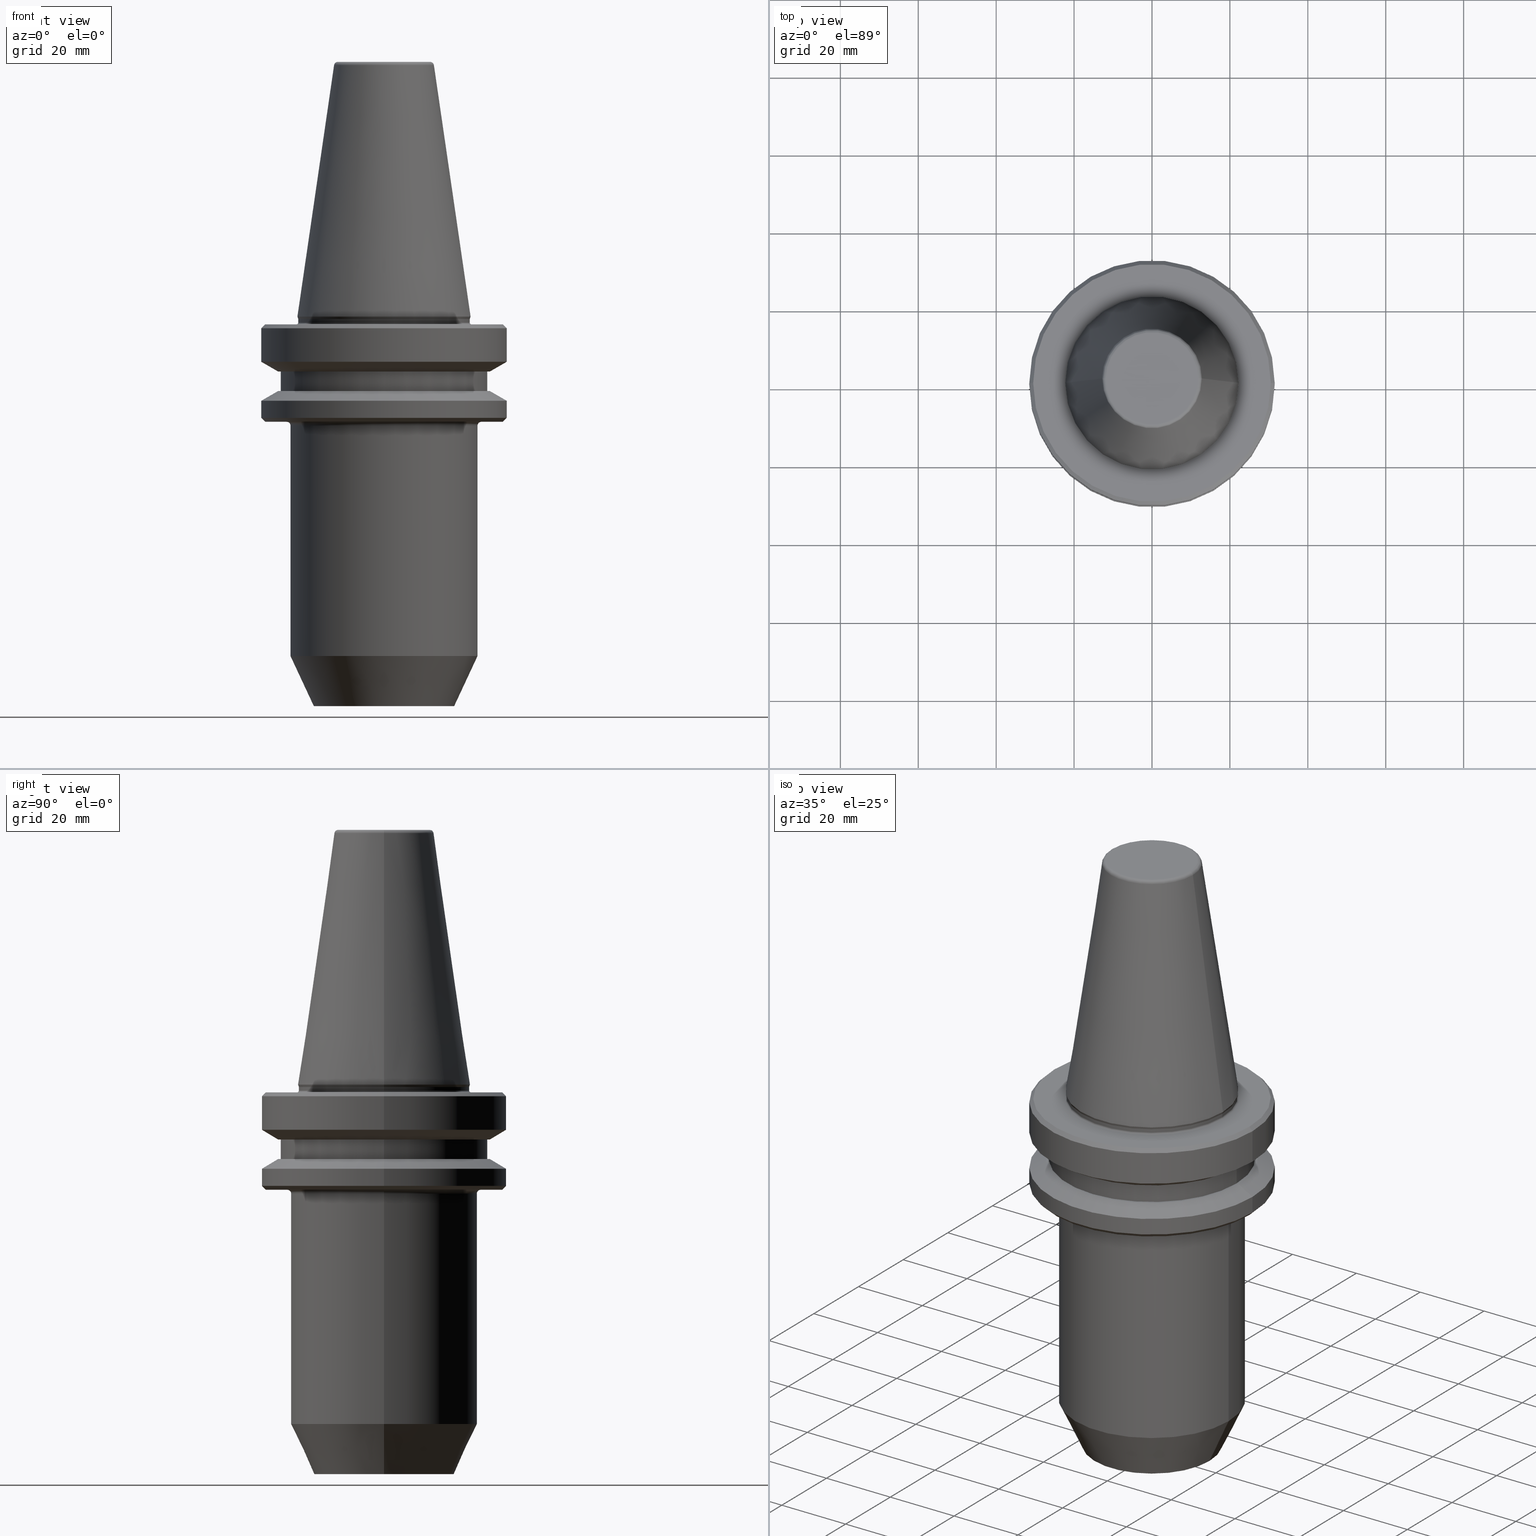
[diagram: canonical four-view strip — front | top / right | iso, engineering-drawing reading convention]
A machine part, canonical four-view strip (front | top / right | iso — engineering-drawing reading convention). The complete STEP part file that produces these views, byte-faithful:
ISO-10303-21;
HEADER;
FILE_DESCRIPTION (( 'STEP AP203' ),
    '1' );
FILE_NAME ('BT40 WE16 100 AD-6.3G15000 SL.STEP',
    '2019-05-22T08:48:58',
    ( '' ),
    ( '' ),
    'SwSTEP 2.0',
    'SolidWorks 2014',
    '' );
FILE_SCHEMA (( 'CONFIG_CONTROL_DESIGN' ));
ENDSEC;

DATA;
#1 = EDGE_CURVE ( 'NONE', #26, #372, #73, .T. ) ;
#2 = DIRECTION ( 'NONE',  ( 1.000000000000000000, 0.0000000000000000000, 0.0000000000000000000 ) ) ;
#3 = COORDINATED_UNIVERSAL_TIME_OFFSET ( 5, 30, .AHEAD. ) ;
#4 = ORIENTED_EDGE ( 'NONE', *, *, #777, .F. ) ;
#5 = DIRECTION ( 'NONE',  ( -0.0000000000000000000, -0.0000000000000000000, 1.000000000000000000 ) ) ;
#6 = CC_DESIGN_PERSON_AND_ORGANIZATION_ASSIGNMENT ( #91, #582, ( #12 ) ) ;
#7 = CYLINDRICAL_SURFACE ( 'NONE', #132, 24.00000000000000000 ) ;
#8 = CC_DESIGN_APPROVAL ( #10, ( #12 ) ) ;
#9 = CARTESIAN_POINT ( 'NONE',  ( 31.49999999999986100, 0.0000000000000000000, -10.91114478202370800 ) ) ;
#10 = APPROVAL ( #238, 'UNSPECIFIED' ) ;
#11 = DIRECTION ( 'NONE',  ( 1.000000000000000000, 0.0000000000000000000, 0.0000000000000000000 ) ) ;
#12 = PRODUCT_DEFINITION ( 'UNKNOWN', '', #623, #1011 ) ;
#13 = FACE_OUTER_BOUND ( 'NONE', #774, .T. ) ;
#14 = ORIENTED_EDGE ( 'NONE', *, *, #604, .F. ) ;
#15 = CC_DESIGN_PERSON_AND_ORGANIZATION_ASSIGNMENT ( #771, #67, ( #59 ) ) ;
#16 = FACE_BOUND ( 'NONE', #115, .T. ) ;
#17 = DIRECTION ( 'NONE',  ( -0.7071067811865474600, 8.659560562354931600E-017, 0.7071067811865475700 ) ) ;
#18 = CARTESIAN_POINT ( 'NONE',  ( 31.50000000000019500, 0.0000000000000000000, -25.31128678844346400 ) ) ;
#19 = CIRCLE ( 'NONE', #66, 31.49999999999986100 ) ;
#20 = AXIS2_PLACEMENT_3D ( 'NONE', #659, #121, #763 ) ;
#21 = ORIENTED_EDGE ( 'NONE', *, *, #613, .T. ) ;
#22 = DIRECTION ( 'NONE',  ( 1.000000000000000000, 0.0000000000000000000, 0.0000000000000000000 ) ) ;
#23 = AXIS2_PLACEMENT_3D ( 'NONE', #197, #965, #504 ) ;
#24 = ORIENTED_EDGE ( 'NONE', *, *, #959, .F. ) ;
#25 = LINE ( 'NONE', #664, #673 ) ;
#26 = VERTEX_POINT ( 'NONE', #827 ) ;
#27 = EDGE_LOOP ( 'NONE', ( #649, #88, #580, #264 ) ) ;
#28 = ORIENTED_EDGE ( 'NONE', *, *, #343, .T. ) ;
#29 = EDGE_CURVE ( 'NONE', #900, #890, #709, .T. ) ;
#30 = DIRECTION ( 'NONE',  ( -0.0000000000000000000, -0.0000000000000000000, 1.000000000000000000 ) ) ;
#31 = EDGE_LOOP ( 'NONE', ( #721, #708 ) ) ;
#32 = DIRECTION ( 'NONE',  ( -0.0000000000000000000, -0.0000000000000000000, 1.000000000000000000 ) ) ;
#33 = ORIENTED_EDGE ( 'NONE', *, *, #564, .F. ) ;
#34 = DATE_AND_TIME ( #284, #498 ) ;
#35 = ORIENTED_EDGE ( 'NONE', *, *, #478, .T. ) ;
#36 =( GEOMETRIC_REPRESENTATION_CONTEXT ( 3 ) GLOBAL_UNCERTAINTY_ASSIGNED_CONTEXT ( ( #892 ) ) GLOBAL_UNIT_ASSIGNED_CONTEXT ( ( #345, #731, #428 ) ) REPRESENTATION_CONTEXT ( 'NONE', 'WORKASPACE' ) );
#37 = ORIENTED_EDGE ( 'NONE', *, *, #289, .F. ) ;
#38 = FACE_OUTER_BOUND ( 'NONE', #182, .T. ) ;
#39 = DIRECTION ( 'NONE',  ( -0.7071067811865474600, 0.0000000000000000000, -0.7071067811865475700 ) ) ;
#40 = AXIS2_PLACEMENT_3D ( 'NONE', #815, #105, #810 ) ;
#41 = DIRECTION ( 'NONE',  ( -0.0000000000000000000, -0.0000000000000000000, 1.000000000000000000 ) ) ;
#42 = CARTESIAN_POINT ( 'NONE',  ( 0.0000000000000000000, 0.0000000000000000000, -99.31128678834039600 ) ) ;
#43 = DIRECTION ( 'NONE',  ( -0.0000000000000000000, -0.0000000000000000000, 1.000000000000000000 ) ) ;
#44 = CIRCLE ( 'NONE', #228, 22.49999999999985400 ) ;
#45 = DIRECTION ( 'NONE',  ( 1.000000000000000000, 0.0000000000000000000, 0.0000000000000000000 ) ) ;
#46 = ORIENTED_EDGE ( 'NONE', *, *, #604, .T. ) ;
#47 = LINE ( 'NONE', #690, #905 ) ;
#48 = CARTESIAN_POINT ( 'NONE',  ( 0.0000000000000000000, 18.00000000000000000, -99.31128678834039600 ) ) ;
#49 = EDGE_LOOP ( 'NONE', ( #997, #246, #1005, #46 ) ) ;
#50 = CARTESIAN_POINT ( 'NONE',  ( 27.16962701892167300, 3.592478546794586600E-015, -18.41128678844344800 ) ) ;
#51 = CIRCLE ( 'NONE', #196, 1.000000000000000900 ) ;
#52 = DIRECTION ( 'NONE',  ( -0.0000000000000000000, -0.0000000000000000000, 1.000000000000000000 ) ) ;
#53 = DIRECTION ( 'NONE',  ( -0.0000000000000000000, -0.0000000000000000000, 1.000000000000000000 ) ) ;
#54 = CC_DESIGN_PERSON_AND_ORGANIZATION_ASSIGNMENT ( #680, #759, ( #623 ) ) ;
#55 = VERTEX_POINT ( 'NONE', #615 ) ;
#56 = CIRCLE ( 'NONE', #354, 24.00000000000000000 ) ;
#57 = VERTEX_POINT ( 'NONE', #221 ) ;
#58 = ORIENTED_EDGE ( 'NONE', *, *, #568, .T. ) ;
#59 = PRODUCT ( 'BT40 WE16 100 AD-6.3G15000 SL', 'BT40 WE16 100 AD-6.3G15000 SL', '', ( #1034 ) ) ;
#60 = EDGE_CURVE ( 'NONE', #783, #914, #512, .T. ) ;
#61 = CARTESIAN_POINT ( 'NONE',  ( 0.0000000000000000000, 0.0000000000000000000, -13.41128678834002700 ) ) ;
#62 = PERSON_AND_ORGANIZATION ( #230, #975 ) ;
#63 = CIRCLE ( 'NONE', #141, 18.00000000000000000 ) ;
#64 = DIRECTION ( 'NONE',  ( -0.0000000000000000000, -0.0000000000000000000, 1.000000000000000000 ) ) ;
#65 = CC_DESIGN_DATE_AND_TIME_ASSIGNMENT ( #311, #414, ( #12 ) ) ;
#66 = AXIS2_PLACEMENT_3D ( 'NONE', #519, #740, #823 ) ;
#67 = PERSON_AND_ORGANIZATION_ROLE ( 'design_owner' ) ;
#68 = CARTESIAN_POINT ( 'NONE',  ( 0.0000000000000000000, 0.0000000000000000000, -2.311286788340083400 ) ) ;
#69 = AXIS2_PLACEMENT_3D ( 'NONE', #595, #158, #704 ) ;
#70 = FACE_OUTER_BOUND ( 'NONE', #557, .T. ) ;
#71 = DIRECTION ( 'NONE',  ( 1.000000000000000000, 0.0000000000000000000, 0.0000000000000000000 ) ) ;
#72 = VERTEX_POINT ( 'NONE', #506 ) ;
#73 = CIRCLE ( 'NONE', #69, 27.16962701892278200 ) ;
#74 = AXIS2_PLACEMENT_3D ( 'NONE', #491, #203, #116 ) ;
#75 = EDGE_CURVE ( 'NONE', #495, #890, #47, .T. ) ;
#76 = AXIS2_PLACEMENT_3D ( 'NONE', #980, #1053, #529 ) ;
#77 = DIRECTION ( 'NONE',  ( -0.0000000000000000000, -0.0000000000000000000, 1.000000000000000000 ) ) ;
#78 = VECTOR ( 'NONE', #986, 1000.000000000000000 ) ;
#79 = DIRECTION ( 'NONE',  ( 1.000000000000000000, 0.0000000000000000000, 0.0000000000000000000 ) ) ;
#80 = AXIS2_PLACEMENT_3D ( 'NONE', #725, #888, #471 ) ;
#81 = AXIS2_PLACEMENT_3D ( 'NONE', #594, #592, #71 ) ;
#82 = DIRECTION ( 'NONE',  ( 0.0000000000000000000, -0.0000000000000000000, 1.000000000000000000 ) ) ;
#83 = ADVANCED_FACE ( 'NONE', ( #297 ), #688, .T. ) ;
#84 = AXIS2_PLACEMENT_3D ( 'NONE', #990, #992, #979 ) ;
#85 = CARTESIAN_POINT ( 'NONE',  ( -18.00000000000000000, 2.571758278209441300E-015, -99.31128678834039600 ) ) ;
#86 = FACE_OUTER_BOUND ( 'NONE', #600, .T. ) ;
#87 = AXIS2_PLACEMENT_3D ( 'NONE', #233, #133, #955 ) ;
#88 = ORIENTED_EDGE ( 'NONE', *, *, #352, .F. ) ;
#89 = APPROVAL ( #826, 'UNSPECIFIED' ) ;
#90 = DIRECTION ( 'NONE',  ( 1.000000000000000000, 0.0000000000000000000, 0.0000000000000000000 ) ) ;
#91 = PERSON_AND_ORGANIZATION ( #230, #975 ) ;
#92 = DIRECTION ( 'NONE',  ( 0.0000000000000000000, 0.0000000000000000000, -1.000000000000000000 ) ) ;
#93 = ORIENTED_EDGE ( 'NONE', *, *, #564, .T. ) ;
#94 = LINE ( 'NONE', #761, #924 ) ;
#95 = ADVANCED_FACE ( 'NONE', ( #930, #484 ), #388, .F. ) ;
#96 = CARTESIAN_POINT ( 'NONE',  ( 22.22499999999971700, 0.0000000000000000000, 0.6887132116596417200 ) ) ;
#97 = AXIS2_PLACEMENT_3D ( 'NONE', #611, #940, #927 ) ;
#98 = CARTESIAN_POINT ( 'NONE',  ( -26.50000000000007800, 3.245314017740495600E-015, 82.74845858742440900 ) ) ;
#99 = AXIS2_PLACEMENT_3D ( 'NONE', #398, #923, #627 ) ;
#100 = AXIS2_PLACEMENT_3D ( 'NONE', #370, #838, #288 ) ;
#101 = CARTESIAN_POINT ( 'NONE',  ( -27.16962701892278200, 3.327319676275122900E-015, -13.41128678834002700 ) ) ;
#102 = CIRCLE ( 'NONE', #232, 21.99999999999982600 ) ;
#103 = CARTESIAN_POINT ( 'NONE',  ( 0.0000000000000000000, 0.0000000000000000000, -25.31128678844346400 ) ) ;
#104 = ORIENTED_EDGE ( 'NONE', *, *, #770, .F. ) ;
#105 = DIRECTION ( 'NONE',  ( 0.0000000000000000000, 0.0000000000000000000, -1.000000000000000000 ) ) ;
#106 = AXIS2_PLACEMENT_3D ( 'NONE', #68, #957, #350 ) ;
#107 = DIRECTION ( 'NONE',  ( 1.000000000000000000, 0.0000000000000000000, 0.0000000000000000000 ) ) ;
#108 = DIRECTION ( 'NONE',  ( 1.000000000000000000, 0.0000000000000000000, 0.0000000000000000000 ) ) ;
#109 = LINE ( 'NONE', #139, #885 ) ;
#110 = AXIS2_PLACEMENT_3D ( 'NONE', #419, #654, #805 ) ;
#111 = AXIS2_PLACEMENT_3D ( 'NONE', #996, #92, #465 ) ;
#112 = EDGE_LOOP ( 'NONE', ( #21, #588, #24, #244 ) ) ;
#113 = AXIS2_PLACEMENT_3D ( 'NONE', #202, #304, #549 ) ;
#114 = CIRCLE ( 'NONE', #324, 31.49999999999986100 ) ;
#115 = EDGE_LOOP ( 'NONE', ( #853, #58 ) ) ;
#116 = DIRECTION ( 'NONE',  ( 1.000000000000000000, 0.0000000000000000000, 0.0000000000000000000 ) ) ;
#117 = COORDINATED_UNIVERSAL_TIME_OFFSET ( 5, 30, .AHEAD. ) ;
#118 = AXIS2_PLACEMENT_3D ( 'NONE', #134, #769, #937 ) ;
#119 = DIRECTION ( 'NONE',  ( 0.3420201433261634300, 0.0000000000000000000, 0.9396926207857283500 ) ) ;
#120 = AXIS2_PLACEMENT_3D ( 'NONE', #877, #602, #524 ) ;
#121 = DIRECTION ( 'NONE',  ( 0.0000000000000000000, 0.0000000000000000000, 1.000000000000000000 ) ) ;
#122 = DIRECTION ( 'NONE',  ( -0.0000000000000000000, -0.0000000000000000000, 1.000000000000000000 ) ) ;
#123 = CARTESIAN_POINT ( 'NONE',  ( -31.49999999999986100, 0.0000000000000000000, -2.311286788340083400 ) ) ;
#124 = AXIS2_PLACEMENT_3D ( 'NONE', #697, #30, #208 ) ;
#125 = CARTESIAN_POINT ( 'NONE',  ( -31.49999999999986100, 3.857637417314145300E-015, -2.311286788340083400 ) ) ;
#126 = CIRCLE ( 'NONE', #255, 26.50000000000007800 ) ;
#127 = AXIS2_PLACEMENT_3D ( 'NONE', #397, #702, #1008 ) ;
#128 = VERTEX_POINT ( 'NONE', #505 ) ;
#129 = CARTESIAN_POINT ( 'NONE',  ( 0.0000000000000000000, 0.0000000000000000000, -13.41128678834002700 ) ) ;
#130 = ADVANCED_FACE ( 'NONE', ( #261, #16 ), #873, .F. ) ;
#131 = EDGE_LOOP ( 'NONE', ( #451, #239, #651, #710 ) ) ;
#132 = AXIS2_PLACEMENT_3D ( 'NONE', #637, #899, #624 ) ;
#133 = DIRECTION ( 'NONE',  ( -0.0000000000000000000, -0.0000000000000000000, 1.000000000000000000 ) ) ;
#134 = CARTESIAN_POINT ( 'NONE',  ( 0.0000000000000000000, 0.0000000000000000000, -26.31128678844368800 ) ) ;
#135 = AXIS2_PLACEMENT_3D ( 'NONE', #944, #403, #776 ) ;
#136 = CIRCLE ( 'NONE', #76, 22.02412295168547700 ) ;
#137 = DIRECTION ( 'NONE',  ( 1.000000000000000000, 0.0000000000000000000, 0.0000000000000000000 ) ) ;
#138 = AXIS2_PLACEMENT_3D ( 'NONE', #390, #861, #313 ) ;
#139 = CARTESIAN_POINT ( 'NONE',  ( -21.99999999999981200, 2.694222958124154300E-015, 82.74845858742440900 ) ) ;
#140 = PLANE ( 'NONE',  #315 ) ;
#141 = AXIS2_PLACEMENT_3D ( 'NONE', #42, #300, #561 ) ;
#142 = DIRECTION ( 'NONE',  ( -0.0000000000000000000, -0.0000000000000000000, 1.000000000000000000 ) ) ;
#143 = AXIS2_PLACEMENT_3D ( 'NONE', #757, #348, #544 ) ;
#144 = DIRECTION ( 'NONE',  ( -0.0000000000000000000, -0.0000000000000000000, 1.000000000000000000 ) ) ;
#145 = CIRCLE ( 'NONE', #389, 31.49999999999986100 ) ;
#146 = AXIS2_PLACEMENT_3D ( 'NONE', #786, #321, #45 ) ;
#147 = CARTESIAN_POINT ( 'NONE',  ( 0.0000000000000000000, 0.0000000000000000000, -27.31128678844368800 ) ) ;
#148 = EDGE_LOOP ( 'NONE', ( #968, #1047, #622, #396 ) ) ;
#149 = DIRECTION ( 'NONE',  ( 1.000000000000000000, 0.0000000000000000000, 0.0000000000000000000 ) ) ;
#150 = SHAPE_DEFINITION_REPRESENTATION ( #457, #843 ) ;
#151 = DIRECTION ( 'NONE',  ( 1.000000000000000000, 0.0000000000000000000, 0.0000000000000000000 ) ) ;
#152 = AXIS2_PLACEMENT_3D ( 'NONE', #601, #718, #814 ) ;
#153 = AXIS2_PLACEMENT_3D ( 'NONE', #280, #472, #219 ) ;
#154 = CARTESIAN_POINT ( 'NONE',  ( 0.0000000000000000000, 0.0000000000000000000, -5.551115123125782700E-014 ) ) ;
#155 = AXIS2_PLACEMENT_3D ( 'NONE', #812, #341, #639 ) ;
#156 = AXIS2_PLACEMENT_3D ( 'NONE', #685, #479, #302 ) ;
#157 = FACE_OUTER_BOUND ( 'NONE', #148, .T. ) ;
#158 = DIRECTION ( 'NONE',  ( -0.0000000000000000000, -0.0000000000000000000, 1.000000000000000000 ) ) ;
#159 = EDGE_LOOP ( 'NONE', ( #562, #480, #652, #1033 ) ) ;
#160 = AXIS2_PLACEMENT_3D ( 'NONE', #353, #5, #79 ) ;
#161 = AXIS2_PLACEMENT_3D ( 'NONE', #617, #82, #516 ) ;
#162 = ORIENTED_EDGE ( 'NONE', *, *, #626, .F. ) ;
#163 = CIRCLE ( 'NONE', #120, 26.50000000000007800 ) ;
#164 = AXIS2_PLACEMENT_3D ( 'NONE', #531, #683, #610 ) ;
#165 = ADVANCED_FACE ( 'NONE', ( #882 ), #1043, .T. ) ;
#166 = AXIS2_PLACEMENT_3D ( 'NONE', #894, #435, #667 ) ;
#167 = CARTESIAN_POINT ( 'NONE',  ( 0.0000000000000000000, 0.0000000000000000000, -86.44424526528280200 ) ) ;
#168 = CARTESIAN_POINT ( 'NONE',  ( -24.00000000000000000, 2.939152317953647900E-015, -86.44424526528280200 ) ) ;
#169 = EDGE_CURVE ( 'NONE', #864, #907, #226, .T. ) ;
#170 = CIRCLE ( 'NONE', #156, 12.81220206925715000 ) ;
#171 = DIRECTION ( 'NONE',  ( -0.0000000000000000000, -0.0000000000000000000, 1.000000000000000000 ) ) ;
#172 = CONICAL_SURFACE ( 'NONE', #379, 22.22499999999971700, 0.1448138077623186700 ) ;
#173 = ORIENTED_EDGE ( 'NONE', *, *, #204, .F. ) ;
#174 = EDGE_LOOP ( 'NONE', ( #668, #842, #364, #1024 ) ) ;
#175 = CARTESIAN_POINT ( 'NONE',  ( 0.0000000000000000000, 0.0000000000000000000, -18.41128678844344800 ) ) ;
#176 = AXIS2_PLACEMENT_3D ( 'NONE', #863, #855, #2 ) ;
#177 = AXIS2_PLACEMENT_3D ( 'NONE', #422, #859, #915 ) ;
#178 = ORIENTED_EDGE ( 'NONE', *, *, #850, .T. ) ;
#179 = AXIS2_PLACEMENT_3D ( 'NONE', #958, #729, #243 ) ;
#180 = DIRECTION ( 'NONE',  ( 1.000000000000000000, 0.0000000000000000000, 0.0000000000000000000 ) ) ;
#181 = CARTESIAN_POINT ( 'NONE',  ( -22.02412295168547700, 2.697177167680937400E-015, 0.1368080573304758500 ) ) ;
#182 = EDGE_LOOP ( 'NONE', ( #400, #303, #14, #891 ) ) ;
#183 = FACE_OUTER_BOUND ( 'NONE', #724, .T. ) ;
#184 = EDGE_LOOP ( 'NONE', ( #399, #37 ) ) ;
#185 = VERTEX_POINT ( 'NONE', #733 ) ;
#186 = CARTESIAN_POINT ( 'NONE',  ( 31.49999999999986100, 0.0000000000000000000, -2.311286788340083400 ) ) ;
#187 = CARTESIAN_POINT ( 'NONE',  ( 0.0000000000000000000, 0.0000000000000000000, -25.31128678844346400 ) ) ;
#188 = AXIS2_PLACEMENT_3D ( 'NONE', #265, #739, #1032 ) ;
#189 = DATE_AND_TIME ( #424, #635 ) ;
#190 = AXIS2_PLACEMENT_3D ( 'NONE', #430, #43, #215 ) ;
#191 = FACE_OUTER_BOUND ( 'NONE', #174, .T. ) ;
#192 = DIRECTION ( 'NONE',  ( -0.0000000000000000000, -0.0000000000000000000, 1.000000000000000000 ) ) ;
#193 = VERTEX_POINT ( 'NONE', #906 ) ;
#194 = DIRECTION ( 'NONE',  ( -0.0000000000000000000, -0.0000000000000000000, 1.000000000000000000 ) ) ;
#195 = DIRECTION ( 'NONE',  ( 1.000000000000000000, 0.0000000000000000000, 0.0000000000000000000 ) ) ;
#196 = AXIS2_PLACEMENT_3D ( 'NONE', #640, #1045, #507 ) ;
#197 = CARTESIAN_POINT ( 'NONE',  ( 0.0000000000000000000, 0.0000000000000000000, 82.74845858742440900 ) ) ;
#198 = CIRCLE ( 'NONE', #533, 18.00000000000000000 ) ;
#199 = DIRECTION ( 'NONE',  ( 1.000000000000000000, 0.0000000000000000000, 0.0000000000000000000 ) ) ;
#200 = VERTEX_POINT ( 'NONE', #897 ) ;
#201 = CARTESIAN_POINT ( 'NONE',  ( 0.0000000000000000000, 26.50000000000007800, -13.41128678834002700 ) ) ;
#202 = CARTESIAN_POINT ( 'NONE',  ( 0.0000000000000000000, 0.0000000000000000000, -0.8112867883400820500 ) ) ;
#203 = DIRECTION ( 'NONE',  ( -0.0000000000000000000, -0.0000000000000000000, 1.000000000000000000 ) ) ;
#204 = EDGE_CURVE ( 'NONE', #446, #545, #663, .T. ) ;
#205 = CARTESIAN_POINT ( 'NONE',  ( 0.0000000000000000000, 0.0000000000000000000, -20.91142879476059900 ) ) ;
#206 = AXIS2_PLACEMENT_3D ( 'NONE', #538, #789, #195 ) ;
#207 = CIRCLE ( 'NONE', #308, 26.50000000000007800 ) ;
#208 = DIRECTION ( 'NONE',  ( 1.000000000000000000, 0.0000000000000000000, 0.0000000000000000000 ) ) ;
#209 = ORIENTED_EDGE ( 'NONE', *, *, #878, .F. ) ;
#210 = DIRECTION ( 'NONE',  ( -0.0000000000000000000, -0.0000000000000000000, 1.000000000000000000 ) ) ;
#211 = CARTESIAN_POINT ( 'NONE',  ( -30.49999999999986100, 0.0000000000000000000, -1.311286788340082500 ) ) ;
#212 = PERSON_AND_ORGANIZATION ( #230, #975 ) ;
#213 = EDGE_CURVE ( 'NONE', #914, #503, #848, .T. ) ;
#214 = ORIENTED_EDGE ( 'NONE', *, *, #862, .F. ) ;
#215 = DIRECTION ( 'NONE',  ( 1.000000000000000000, 0.0000000000000000000, 0.0000000000000000000 ) ) ;
#216 = FACE_OUTER_BOUND ( 'NONE', #468, .T. ) ;
#217 = DIRECTION ( 'NONE',  ( 0.0000000000000000000, -0.0000000000000000000, 1.000000000000000000 ) ) ;
#218 = AXIS2_PLACEMENT_3D ( 'NONE', #569, #543, #766 ) ;
#219 = DIRECTION ( 'NONE',  ( 1.000000000000000000, 0.0000000000000000000, 0.0000000000000000000 ) ) ;
#220 = AXIS2_PLACEMENT_3D ( 'NONE', #1029, #286, #977 ) ;
#221 = CARTESIAN_POINT ( 'NONE',  ( 21.99999999999982600, 0.0000000000000000000, -0.8112867883400820500 ) ) ;
#222 = DIRECTION ( 'NONE',  ( -0.0000000000000000000, -0.0000000000000000000, 1.000000000000000000 ) ) ;
#223 = CONICAL_SURFACE ( 'NONE', #206, 22.02412295168547700, 0.3490658503993923600 ) ;
#224 = AXIS2_PLACEMENT_3D ( 'NONE', #310, #973, #574 ) ;
#225 = CARTESIAN_POINT ( 'NONE',  ( 0.0000000000000000000, 0.0000000000000000000, 82.74845858742440900 ) ) ;
#226 = CIRCLE ( 'NONE', #485, 22.02412295168547700 ) ;
#227 = DIRECTION ( 'NONE',  ( 1.000000000000000000, 0.0000000000000000000, 0.0000000000000000000 ) ) ;
#228 = AXIS2_PLACEMENT_3D ( 'NONE', #325, #741, #756 ) ;
#229 = LINE ( 'NONE', #404, #1044 ) ;
#230 = PERSON ( 'UNSPECIFIED', 'UNSPECIFIED', 'UNSPECIFIED', ('UNSPECIFIED'), ('UNSPECIFIED'), ('UNSPECIFIED') ) ;
#231 = DIRECTION ( 'NONE',  ( -0.4226182617406930600, 5.175581015019580500E-017, 0.9063077870366529300 ) ) ;
#232 = AXIS2_PLACEMENT_3D ( 'NONE', #314, #1007, #394 ) ;
#233 = CARTESIAN_POINT ( 'NONE',  ( 0.0000000000000000000, 0.0000000000000000000, -26.31128678844368800 ) ) ;
#234 = CARTESIAN_POINT ( 'NONE',  ( 0.0000000000000000000, 0.0000000000000000000, 0.6887132116596417200 ) ) ;
#235 = AXIS2_PLACEMENT_3D ( 'NONE', #898, #818, #227 ) ;
#236 = ADVANCED_FACE ( 'NONE', ( #462 ), #621, .T. ) ;
#237 = FACE_OUTER_BOUND ( 'NONE', #359, .T. ) ;
#238 = APPROVAL_STATUS ( 'not_yet_approved' ) ;
#239 = ORIENTED_EDGE ( 'NONE', *, *, #712, .T. ) ;
#240 = ORIENTED_EDGE ( 'NONE', *, *, #478, .F. ) ;
#241 = ORIENTED_EDGE ( 'NONE', *, *, #762, .F. ) ;
#242 = DIRECTION ( 'NONE',  ( -0.0000000000000000000, -0.0000000000000000000, 1.000000000000000000 ) ) ;
#243 = DIRECTION ( 'NONE',  ( -1.000000000000000000, 0.0000000000000000000, 0.0000000000000000000 ) ) ;
#244 = ORIENTED_EDGE ( 'NONE', *, *, #492, .F. ) ;
#245 = PERSON_AND_ORGANIZATION ( #230, #975 ) ;
#246 = ORIENTED_EDGE ( 'NONE', *, *, #902, .F. ) ;
#247 = DIRECTION ( 'NONE',  ( 0.0000000000000000000, 0.0000000000000000000, -1.000000000000000000 ) ) ;
#248 = ORIENTED_EDGE ( 'NONE', *, *, #270, .F. ) ;
#249 = LINE ( 'NONE', #691, #658 ) ;
#250 = DIRECTION ( 'NONE',  ( 1.000000000000000000, 0.0000000000000000000, 0.0000000000000000000 ) ) ;
#251 = AXIS2_PLACEMENT_3D ( 'NONE', #175, #355, #825 ) ;
#252 = DIRECTION ( 'NONE',  ( 1.000000000000000000, 0.0000000000000000000, 0.0000000000000000000 ) ) ;
#253 = AXIS2_PLACEMENT_3D ( 'NONE', #368, #502, #250 ) ;
#254 = CARTESIAN_POINT ( 'NONE',  ( 27.16962701892278200, 0.0000000000000000000, -13.41128678834002700 ) ) ;
#255 = AXIS2_PLACEMENT_3D ( 'NONE', #925, #530, #534 ) ;
#256 = ORIENTED_EDGE ( 'NONE', *, *, #758, .T. ) ;
#257 = CARTESIAN_POINT ( 'NONE',  ( 0.0000000000000000000, 0.0000000000000000000, 65.08871321166032000 ) ) ;
#258 = CIRCLE ( 'NONE', #176, 22.49999999999985400 ) ;
#259 = ORIENTED_EDGE ( 'NONE', *, *, #458, .F. ) ;
#260 = ORIENTED_EDGE ( 'NONE', *, *, #458, .T. ) ;
#261 = FACE_OUTER_BOUND ( 'NONE', #423, .T. ) ;
#262 = AXIS2_PLACEMENT_3D ( 'NONE', #584, #1026, #149 ) ;
#263 = AXIS2_PLACEMENT_3D ( 'NONE', #234, #598, #982 ) ;
#264 = ORIENTED_EDGE ( 'NONE', *, *, #991, .T. ) ;
#265 = CARTESIAN_POINT ( 'NONE',  ( 0.0000000000000000000, 0.0000000000000000000, 65.08871321166032000 ) ) ;
#266 = ADVANCED_FACE ( 'NONE', ( #644 ), #172, .T. ) ;
#267 = EDGE_LOOP ( 'NONE', ( #363, #361, #93, #209 ) ) ;
#268 = CARTESIAN_POINT ( 'NONE',  ( 18.00000000000000000, 0.0000000000000000000, -99.31128678834039600 ) ) ;
#269 = CYLINDRICAL_SURFACE ( 'NONE', #190, 26.50000000000007800 ) ;
#270 = EDGE_CURVE ( 'NONE', #587, #193, #411, .T. ) ;
#271 = ORIENTED_EDGE ( 'NONE', *, *, #448, .F. ) ;
#272 = AXIS2_PLACEMENT_3D ( 'NONE', #450, #142, #22 ) ;
#273 = AXIS2_PLACEMENT_3D ( 'NONE', #205, #684, #275 ) ;
#274 = SECURITY_CLASSIFICATION_LEVEL ( 'unclassified' ) ;
#275 = DIRECTION ( 'NONE',  ( 1.000000000000000000, 0.0000000000000000000, 0.0000000000000000000 ) ) ;
#276 = ORIENTED_EDGE ( 'NONE', *, *, #385, .T. ) ;
#277 = AXIS2_PLACEMENT_3D ( 'NONE', #572, #884, #643 ) ;
#278 = CONICAL_SURFACE ( 'NONE', #317, 22.22499999999971700, 0.1448138077623186700 ) ;
#279 = EDGE_LOOP ( 'NONE', ( #674, #695, #745, #309 ) ) ;
#280 = CARTESIAN_POINT ( 'NONE',  ( 0.0000000000000000000, 0.0000000000000000000, 66.08871321166032000 ) ) ;
#281 = AXIS2_PLACEMENT_3D ( 'NONE', #751, #53, #591 ) ;
#282 = AXIS2_PLACEMENT_3D ( 'NONE', #257, #606, #628 ) ;
#283 = ORIENTED_EDGE ( 'NONE', *, *, #762, .T. ) ;
#284 = CALENDAR_DATE ( 2019, 22, 5 ) ;
#285 = ORIENTED_EDGE ( 'NONE', *, *, #705, .T. ) ;
#286 = DIRECTION ( 'NONE',  ( -0.0000000000000000000, -0.0000000000000000000, 1.000000000000000000 ) ) ;
#287 = CIRCLE ( 'NONE', #146, 11.82266927716801800 ) ;
#288 = DIRECTION ( 'NONE',  ( 0.0000000000000000000, 0.0000000000000000000, -1.000000000000000000 ) ) ;
#289 = EDGE_CURVE ( 'NONE', #994, #835, #198, .T. ) ;
#290 = AXIS2_PLACEMENT_3D ( 'NONE', #541, #192, #90 ) ;
#291 = AXIS2_PLACEMENT_3D ( 'NONE', #821, #32, #497 ) ;
#292 = CARTESIAN_POINT ( 'NONE',  ( -26.50000000000007800, 3.245314017740495600E-015, -13.41128678834002700 ) ) ;
#293 = VECTOR ( 'NONE', #17, 1000.000000000000000 ) ;
#294 = ORIENTED_EDGE ( 'NONE', *, *, #556, .T. ) ;
#295 = AXIS2_PLACEMENT_3D ( 'NONE', #520, #934, #360 ) ;
#296 = ORIENTED_EDGE ( 'NONE', *, *, #213, .F. ) ;
#297 = FACE_OUTER_BOUND ( 'NONE', #373, .T. ) ;
#298 = ORIENTED_EDGE ( 'NONE', *, *, #613, .F. ) ;
#299 = AXIS2_PLACEMENT_3D ( 'NONE', #778, #880, #108 ) ;
#300 = DIRECTION ( 'NONE',  ( -0.0000000000000000000, -0.0000000000000000000, 1.000000000000000000 ) ) ;
#301 = CIRCLE ( 'NONE', #81, 21.99999999999979700 ) ;
#302 = DIRECTION ( 'NONE',  ( 1.000000000000000000, 0.0000000000000000000, 0.0000000000000000000 ) ) ;
#303 = ORIENTED_EDGE ( 'NONE', *, *, #1016, .T. ) ;
#304 = DIRECTION ( 'NONE',  ( -0.0000000000000000000, -0.0000000000000000000, 1.000000000000000000 ) ) ;
#305 = CONICAL_SURFACE ( 'NONE', #335, 27.16962701892278200, 1.047197551196600300 ) ;
#306 = AXIS2_PLACEMENT_3D ( 'NONE', #103, #687, #107 ) ;
#307 = ADVANCED_FACE ( 'NONE', ( #434 ), #381, .T. ) ;
#308 = AXIS2_PLACEMENT_3D ( 'NONE', #993, #630, #406 ) ;
#309 = ORIENTED_EDGE ( 'NONE', *, *, #959, .T. ) ;
#310 = CARTESIAN_POINT ( 'NONE',  ( 0.0000000000000000000, 0.0000000000000000000, -5.551115123125782700E-014 ) ) ;
#311 = DATE_AND_TIME ( #525, #727 ) ;
#312 = VECTOR ( 'NONE', #386, 1000.000000000000000 ) ;
#313 = DIRECTION ( 'NONE',  ( -1.000000000000000000, 1.224646799147359900E-016, 0.0000000000000000000 ) ) ;
#314 = CARTESIAN_POINT ( 'NONE',  ( 0.0000000000000000000, 0.0000000000000000000, -0.8112867883400820500 ) ) ;
#315 = AXIS2_PLACEMENT_3D ( 'NONE', #48, #217, #851 ) ;
#316 = DIRECTION ( 'NONE',  ( -0.0000000000000000000, -0.0000000000000000000, 1.000000000000000000 ) ) ;
#317 = AXIS2_PLACEMENT_3D ( 'NONE', #558, #1015, #746 ) ;
#318 = DIRECTION ( 'NONE',  ( -0.8660254037844400400, 0.0000000000000000000, -0.4999999999999976100 ) ) ;
#319 = AXIS2_PLACEMENT_3D ( 'NONE', #735, #459, #11 ) ;
#320 = CONICAL_SURFACE ( 'NONE', #253, 18.00000000000000000, 0.4363323129985753300 ) ;
#321 = DIRECTION ( 'NONE',  ( -0.0000000000000000000, -0.0000000000000000000, 1.000000000000000000 ) ) ;
#322 = TOROIDAL_SURFACE ( 'NONE', #412, 22.39999999999986400, 0.4000000000001126500 ) ;
#323 = ORIENTED_EDGE ( 'NONE', *, *, #358, .F. ) ;
#324 = AXIS2_PLACEMENT_3D ( 'NONE', #711, #829, #180 ) ;
#325 = CARTESIAN_POINT ( 'NONE',  ( 0.0000000000000000000, 0.0000000000000000000, -1.311286788340082500 ) ) ;
#326 = LINE ( 'NONE', #703, #715 ) ;
#327 = EDGE_CURVE ( 'NONE', #846, #1025, #794, .T. ) ;
#328 = PERSON_AND_ORGANIZATION_ROLE ( 'design_supplier' ) ;
#329 = EDGE_CURVE ( 'NONE', #633, #807, #822, .T. ) ;
#330 = ADVANCED_FACE ( 'NONE', ( #597 ), #322, .F. ) ;
#331 = EDGE_CURVE ( 'NONE', #193, #587, #145, .T. ) ;
#332 = DIRECTION ( 'NONE',  ( -0.0000000000000000000, -0.0000000000000000000, 1.000000000000000000 ) ) ;
#333 = TOROIDAL_SURFACE ( 'NONE', #319, 22.49999999999985400, 0.5000000000000282000 ) ;
#334 = CARTESIAN_POINT ( 'NONE',  ( 24.00000000000000000, 0.0000000000000000000, 82.74845858742440900 ) ) ;
#335 = AXIS2_PLACEMENT_3D ( 'NONE', #129, #210, #931 ) ;
#336 = APPROVAL_DATE_TIME ( #551, #10 ) ;
#337 = ORIENTED_EDGE ( 'NONE', *, *, #60, .T. ) ;
#338 = CIRCLE ( 'NONE', #153, 11.82266927716801800 ) ;
#339 = EDGE_CURVE ( 'NONE', #907, #1025, #1020, .T. ) ;
#340 = CARTESIAN_POINT ( 'NONE',  ( -12.81220206925713600, 1.569042225414484800E-015, 65.23302140054848100 ) ) ;
#341 = DIRECTION ( 'NONE',  ( 0.0000000000000000000, -1.000000000000000000, 0.0000000000000000000 ) ) ;
#342 = DIRECTION ( 'NONE',  ( -0.0000000000000000000, -0.0000000000000000000, 1.000000000000000000 ) ) ;
#343 = EDGE_CURVE ( 'NONE', #372, #26, #970, .T. ) ;
#344 = LINE ( 'NONE', #441, #734 ) ;
#345 =( LENGTH_UNIT ( ) NAMED_UNIT ( * ) SI_UNIT ( .MILLI., .METRE. ) );
#346 = ORIENTED_EDGE ( 'NONE', *, *, #448, .T. ) ;
#347 = DIRECTION ( 'NONE',  ( 1.000000000000000000, 0.0000000000000000000, 0.0000000000000000000 ) ) ;
#348 = DIRECTION ( 'NONE',  ( -0.0000000000000000000, -0.0000000000000000000, 1.000000000000000000 ) ) ;
#349 = EDGE_LOOP ( 'NONE', ( #431, #632 ) ) ;
#350 = DIRECTION ( 'NONE',  ( -1.000000000000000000, 0.0000000000000000000, 0.0000000000000000000 ) ) ;
#351 = CONICAL_SURFACE ( 'NONE', #74, 22.02412295168547700, 0.3490658503993923600 ) ;
#352 = EDGE_CURVE ( 'NONE', #807, #633, #767, .T. ) ;
#353 = CARTESIAN_POINT ( 'NONE',  ( 0.0000000000000000000, 0.0000000000000000000, -26.31128678844368800 ) ) ;
#354 = AXIS2_PLACEMENT_3D ( 'NONE', #167, #77, #137 ) ;
#355 = DIRECTION ( 'NONE',  ( -0.0000000000000000000, -0.0000000000000000000, 1.000000000000000000 ) ) ;
#356 = CIRCLE ( 'NONE', #420, 24.00000000000000000 ) ;
#357 = CARTESIAN_POINT ( 'NONE',  ( 24.00000000000000000, 0.0000000000000000000, -86.44424526528280200 ) ) ;
#358 = EDGE_CURVE ( 'NONE', #950, #743, #356, .T. ) ;
#359 = EDGE_LOOP ( 'NONE', ( #840, #346, #920, #754 ) ) ;
#360 = DIRECTION ( 'NONE',  ( 1.000000000000000000, 0.0000000000000000000, 0.0000000000000000000 ) ) ;
#361 = ORIENTED_EDGE ( 'NONE', *, *, #327, .T. ) ;
#362 = APPROVAL_PERSON_ORGANIZATION ( #581, #10, #417 ) ;
#363 = ORIENTED_EDGE ( 'NONE', *, *, #518, .F. ) ;
#364 = ORIENTED_EDGE ( 'NONE', *, *, #339, .T. ) ;
#365 = AXIS2_PLACEMENT_3D ( 'NONE', #187, #596, #910 ) ;
#366 = VERTEX_POINT ( 'NONE', #409 ) ;
#367 = CARTESIAN_POINT ( 'NONE',  ( -21.99999999999979700, 2.694222958124153500E-015, -5.551115123125782700E-014 ) ) ;
#368 = CARTESIAN_POINT ( 'NONE',  ( 0.0000000000000000000, 0.0000000000000000000, -99.31128678834039600 ) ) ;
#369 = AXIS2_PLACEMENT_3D ( 'NONE', #61, #122, #779 ) ;
#370 = CARTESIAN_POINT ( 'NONE',  ( 22.39999999999986400, 0.0000000000000000000, -5.551115123125782700E-014 ) ) ;
#371 = CONICAL_SURFACE ( 'NONE', #281, 30.49999999999997200, 0.7853981633974482800 ) ;
#372 = VERTEX_POINT ( 'NONE', #254 ) ;
#373 = EDGE_LOOP ( 'NONE', ( #4, #736, #256, #241 ) ) ;
#374 = VERTEX_POINT ( 'NONE', #292 ) ;
#375 = ORIENTED_EDGE ( 'NONE', *, *, #834, .T. ) ;
#376 = FACE_OUTER_BOUND ( 'NONE', #978, .T. ) ;
#377 = ADVANCED_FACE ( 'NONE', ( #546 ), #333, .F. ) ;
#378 = ADVANCED_FACE ( 'NONE', ( #86 ), #305, .T. ) ;
#379 = AXIS2_PLACEMENT_3D ( 'NONE', #953, #247, #954 ) ;
#380 = ORIENTED_EDGE ( 'NONE', *, *, #385, .F. ) ;
#381 = CONICAL_SURFACE ( 'NONE', #106, 31.49999999999986100, 0.7853981633974482800 ) ;
#382 = ORIENTED_EDGE ( 'NONE', *, *, #433, .F. ) ;
#383 = CC_DESIGN_APPROVAL ( #387, ( #623 ) ) ;
#384 = ORIENTED_EDGE ( 'NONE', *, *, #869, .F. ) ;
#385 = EDGE_CURVE ( 'NONE', #193, #926, #720, .T. ) ;
#386 = DIRECTION ( 'NONE',  ( 0.4226182617406930600, 0.0000000000000000000, 0.9063077870366529300 ) ) ;
#387 = APPROVAL ( #919, 'UNSPECIFIED' ) ;
#388 = PLANE ( 'NONE',  #1014 ) ;
#389 = AXIS2_PLACEMENT_3D ( 'NONE', #599, #342, #496 ) ;
#390 = CARTESIAN_POINT ( 'NONE',  ( -22.39999999999986400, 2.743208830090054500E-015, -5.551115123125782700E-014 ) ) ;
#391 = DIRECTION ( 'NONE',  ( 0.7071067811865474600, 0.0000000000000000000, 0.7071067811865475700 ) ) ;
#392 = FACE_OUTER_BOUND ( 'NONE', #867, .T. ) ;
#393 = ORIENTED_EDGE ( 'NONE', *, *, #991, .F. ) ;
#394 = DIRECTION ( 'NONE',  ( 1.000000000000000000, 0.0000000000000000000, 0.0000000000000000000 ) ) ;
#395 = ORIENTED_EDGE ( 'NONE', *, *, #648, .F. ) ;
#396 = ORIENTED_EDGE ( 'NONE', *, *, #568, .F. ) ;
#397 = CARTESIAN_POINT ( 'NONE',  ( 0.0000000000000000000, 0.0000000000000000000, 82.74845858742440900 ) ) ;
#398 = CARTESIAN_POINT ( 'NONE',  ( 0.0000000000000000000, 0.0000000000000000000, 82.74845858742440900 ) ) ;
#399 = ORIENTED_EDGE ( 'NONE', *, *, #796, .F. ) ;
#400 = ORIENTED_EDGE ( 'NONE', *, *, #358, .T. ) ;
#401 = CARTESIAN_POINT ( 'NONE',  ( 0.0000000000000000000, 0.0000000000000000000, -26.31128678844368800 ) ) ;
#402 = CONICAL_SURFACE ( 'NONE', #135, 27.16962701892278200, 1.047197551196600300 ) ;
#403 = DIRECTION ( 'NONE',  ( -0.0000000000000000000, -0.0000000000000000000, 1.000000000000000000 ) ) ;
#404 = CARTESIAN_POINT ( 'NONE',  ( -24.00000000000000000, 2.939152317953647900E-015, 82.74845858742440900 ) ) ;
#405 = AXIS2_PLACEMENT_3D ( 'NONE', #939, #52, #730 ) ;
#406 = DIRECTION ( 'NONE',  ( 1.000000000000000000, 0.0000000000000000000, 0.0000000000000000000 ) ) ;
#407 = AXIS2_PLACEMENT_3D ( 'NONE', #147, #332, #415 ) ;
#408 = ADVANCED_FACE ( 'NONE', ( #952 ), #140, .F. ) ;
#409 = CARTESIAN_POINT ( 'NONE',  ( -22.49999999999985400, 2.755455298081526600E-015, -1.311286788340096300 ) ) ;
#410 = CIRCLE ( 'NONE', #164, 0.5000000000000282000 ) ;
#411 = CIRCLE ( 'NONE', #1004, 31.49999999999986100 ) ;
#412 = AXIS2_PLACEMENT_3D ( 'NONE', #154, #583, #962 ) ;
#413 = AXIS2_PLACEMENT_3D ( 'NONE', #967, #800, #1000 ) ;
#414 = DATE_TIME_ROLE ( 'creation_date' ) ;
#415 = DIRECTION ( 'NONE',  ( 1.000000000000000000, 0.0000000000000000000, 0.0000000000000000000 ) ) ;
#416 = AXIS2_PLACEMENT_3D ( 'NONE', #764, #1021, #916 ) ;
#417 = APPROVAL_ROLE ( '' ) ;
#418 = AXIS2_PLACEMENT_3D ( 'NONE', #225, #144, #872 ) ;
#419 = CARTESIAN_POINT ( 'NONE',  ( 22.49999999999985400, 0.0000000000000000000, -0.8112867883400820500 ) ) ;
#420 = AXIS2_PLACEMENT_3D ( 'NONE', #700, #1001, #199 ) ;
#421 = CYLINDRICAL_SURFACE ( 'NONE', #272, 26.50000000000007800 ) ;
#422 = CARTESIAN_POINT ( 'NONE',  ( 0.0000000000000000000, 0.0000000000000000000, -0.8112867883400820500 ) ) ;
#423 = EDGE_LOOP ( 'NONE', ( #452, #886 ) ) ;
#424 = CALENDAR_DATE ( 2019, 22, 5 ) ;
#425 = ORIENTED_EDGE ( 'NONE', *, *, #327, .F. ) ;
#426 = ADVANCED_FACE ( 'NONE', ( #522 ), #278, .T. ) ;
#427 = CIRCLE ( 'NONE', #113, 21.99999999999982600 ) ;
#428 =( NAMED_UNIT ( * ) SI_UNIT ( $, .STERADIAN. ) SOLID_ANGLE_UNIT ( ) );
#429 = CARTESIAN_POINT ( 'NONE',  ( -30.49999999999997200, 3.735172737399423600E-015, -26.31128678844368800 ) ) ;
#430 = CARTESIAN_POINT ( 'NONE',  ( 0.0000000000000000000, 0.0000000000000000000, 82.74845858742440900 ) ) ;
#431 = ORIENTED_EDGE ( 'NONE', *, *, #902, .T. ) ;
#432 = CONICAL_SURFACE ( 'NONE', #179, 31.49999999999986100, 0.7853981633974482800 ) ;
#433 = EDGE_CURVE ( 'NONE', #1002, #900, #493, .T. ) ;
#434 = FACE_OUTER_BOUND ( 'NONE', #27, .T. ) ;
#435 = DIRECTION ( 'NONE',  ( 0.0000000000000000000, 0.0000000000000000000, -1.000000000000000000 ) ) ;
#436 = EDGE_LOOP ( 'NONE', ( #449, #883 ) ) ;
#437 = CARTESIAN_POINT ( 'NONE',  ( 25.00000000000000000, 0.0000000000000000000, -26.31128678844368800 ) ) ;
#438 = VERTEX_POINT ( 'NONE', #1013 ) ;
#439 = EDGE_CURVE ( 'NONE', #738, #483, #744, .T. ) ;
#440 = DATE_TIME_ROLE ( 'classification_date' ) ;
#441 = CARTESIAN_POINT ( 'NONE',  ( -31.50000000000019500, 3.857637417314186400E-015, 82.74845858742440900 ) ) ;
#442 = CC_DESIGN_APPROVAL ( #89, ( #559 ) ) ;
#443 = APPLICATION_CONTEXT ( 'configuration controlled 3d designs of mechanical parts and assemblies' ) ;
#444 = ORIENTED_EDGE ( 'NONE', *, *, #811, .T. ) ;
#445 = FACE_OUTER_BOUND ( 'NONE', #112, .T. ) ;
#446 = VERTEX_POINT ( 'NONE', #921 ) ;
#447 = ORIENTED_EDGE ( 'NONE', *, *, #641, .T. ) ;
#448 = EDGE_CURVE ( 'NONE', #200, #495, #693, .T. ) ;
#449 = ORIENTED_EDGE ( 'NONE', *, *, #352, .T. ) ;
#450 = CARTESIAN_POINT ( 'NONE',  ( 0.0000000000000000000, 0.0000000000000000000, 82.74845858742440900 ) ) ;
#451 = ORIENTED_EDGE ( 'NONE', *, *, #514, .T. ) ;
#452 = ORIENTED_EDGE ( 'NONE', *, *, #343, .F. ) ;
#453 = DATE_AND_TIME ( #656, #866 ) ;
#454 = DIRECTION ( 'NONE',  ( -0.8660254037844398200, 1.060575238724908400E-016, 0.4999999999999977200 ) ) ;
#455 = FACE_OUTER_BOUND ( 'NONE', #942, .T. ) ;
#456 = EDGE_CURVE ( 'NONE', #743, #950, #56, .T. ) ;
#457 = PRODUCT_DEFINITION_SHAPE ( 'NONE', 'NONE',  #12 ) ;
#458 = EDGE_CURVE ( 'NONE', #587, #964, #25, .T. ) ;
#459 = DIRECTION ( 'NONE',  ( -0.0000000000000000000, -0.0000000000000000000, 1.000000000000000000 ) ) ;
#460 = DIRECTION ( 'NONE',  ( 1.000000000000000000, 0.0000000000000000000, 0.0000000000000000000 ) ) ;
#461 = TOROIDAL_SURFACE ( 'NONE', #177, 22.49999999999985400, 0.5000000000000282000 ) ;
#462 = FACE_OUTER_BOUND ( 'NONE', #607, .T. ) ;
#463 = AXIS2_PLACEMENT_3D ( 'NONE', #401, #567, #460 ) ;
#464 = ORIENTED_EDGE ( 'NONE', *, *, #270, .T. ) ;
#465 = DIRECTION ( 'NONE',  ( -1.000000000000000000, 0.0000000000000000000, 0.0000000000000000000 ) ) ;
#466 = DIRECTION ( 'NONE',  ( -0.0000000000000000000, -0.0000000000000000000, 1.000000000000000000 ) ) ;
#467 = EDGE_CURVE ( 'NONE', #964, #926, #114, .T. ) ;
#468 = EDGE_LOOP ( 'NONE', ( #548, #972, #837, #824 ) ) ;
#469 = LINE ( 'NONE', #585, #1050 ) ;
#470 = ORIENTED_EDGE ( 'NONE', *, *, #29, .T. ) ;
#471 = DIRECTION ( 'NONE',  ( -1.000000000000000000, 1.224646799147357200E-016, 0.0000000000000000000 ) ) ;
#472 = DIRECTION ( 'NONE',  ( -0.0000000000000000000, -0.0000000000000000000, 1.000000000000000000 ) ) ;
#473 = ORIENTED_EDGE ( 'NONE', *, *, #874, .T. ) ;
#474 = PERSON_AND_ORGANIZATION ( #230, #975 ) ;
#475 = EDGE_LOOP ( 'NONE', ( #380, #938, #260, #393 ) ) ;
#476 = VECTOR ( 'NONE', #316, 1000.000000000000000 ) ;
#477 = ADVANCED_FACE ( 'NONE', ( #237 ), #650, .T. ) ;
#478 = EDGE_CURVE ( 'NONE', #483, #495, #469, .T. ) ;
#479 = DIRECTION ( 'NONE',  ( -0.0000000000000000000, -0.0000000000000000000, 1.000000000000000000 ) ) ;
#480 = ORIENTED_EDGE ( 'NONE', *, *, #289, .T. ) ;
#481 = CARTESIAN_POINT ( 'NONE',  ( -27.16962701892167300, 0.0000000000000000000, -18.41128678844344800 ) ) ;
#482 = VECTOR ( 'NONE', #194, 1000.000000000000000 ) ;
#483 = VERTEX_POINT ( 'NONE', #647 ) ;
#484 = FACE_OUTER_BOUND ( 'NONE', #436, .T. ) ;
#485 = AXIS2_PLACEMENT_3D ( 'NONE', #1036, #589, #252 ) ;
#486 = ORIENTED_EDGE ( 'NONE', *, *, #1, .T. ) ;
#487 = EDGE_CURVE ( 'NONE', #495, #200, #858, .T. ) ;
#488 = ADVANCED_FACE ( 'NONE', ( #445 ), #631, .T. ) ;
#489 = FACE_BOUND ( 'NONE', #887, .T. ) ;
#490 = ORIENTED_EDGE ( 'NONE', *, *, #467, .F. ) ;
#491 = CARTESIAN_POINT ( 'NONE',  ( 0.0000000000000000000, 0.0000000000000000000, 0.1368080573304758500 ) ) ;
#492 = EDGE_CURVE ( 'NONE', #57, #55, #832, .T. ) ;
#493 = LINE ( 'NONE', #947, #918 ) ;
#494 = CARTESIAN_POINT ( 'NONE',  ( 22.02412295168547700, 0.0000000000000000000, 0.1368080573304758500 ) ) ;
#495 = VERTEX_POINT ( 'NONE', #18 ) ;
#496 = DIRECTION ( 'NONE',  ( 1.000000000000000000, 0.0000000000000000000, 0.0000000000000000000 ) ) ;
#497 = DIRECTION ( 'NONE',  ( 1.000000000000000000, 0.0000000000000000000, 0.0000000000000000000 ) ) ;
#498 = LOCAL_TIME ( 14, 18, 58.00000000000000000, #698 ) ;
#499 = CARTESIAN_POINT ( 'NONE',  ( 0.0000000000000000000, 0.0000000000000000000, -18.41128678844344800 ) ) ;
#500 = EDGE_CURVE ( 'NONE', #523, #1002, #1030, .T. ) ;
#501 = FACE_OUTER_BOUND ( 'NONE', #49, .T. ) ;
#502 = DIRECTION ( 'NONE',  ( -0.0000000000000000000, -0.0000000000000000000, 1.000000000000000000 ) ) ;
#503 = VERTEX_POINT ( 'NONE', #913 ) ;
#504 = DIRECTION ( 'NONE',  ( 1.000000000000000000, 0.0000000000000000000, 0.0000000000000000000 ) ) ;
#505 = CARTESIAN_POINT ( 'NONE',  ( -21.99999999999982600, 2.724839128102840900E-015, -0.8112867883400820500 ) ) ;
#506 = CARTESIAN_POINT ( 'NONE',  ( 26.50000000000007800, 0.0000000000000000000, -13.41128678834002700 ) ) ;
#507 = DIRECTION ( 'NONE',  ( 0.0000000000000000000, 0.0000000000000000000, -1.000000000000000000 ) ) ;
#508 = PRODUCT_RELATED_PRODUCT_CATEGORY ( 'detail', '', ( #59 ) ) ;
#509 = DIRECTION ( 'NONE',  ( -1.000000000000000000, 0.0000000000000000000, -0.0000000000000000000 ) ) ;
#510 = FACE_OUTER_BOUND ( 'NONE', #619, .T. ) ;
#511 = ORIENTED_EDGE ( 'NONE', *, *, #1016, .F. ) ;
#512 = CIRCLE ( 'NONE', #80, 1.000000000000000900 ) ;
#513 = EDGE_LOOP ( 'NONE', ( #425, #657, #828, #294 ) ) ;
#514 = EDGE_CURVE ( 'NONE', #545, #446, #207, .T. ) ;
#515 = FACE_OUTER_BOUND ( 'NONE', #131, .T. ) ;
#516 = DIRECTION ( 'NONE',  ( 1.000000000000000000, 0.0000000000000000000, 0.0000000000000000000 ) ) ;
#517 = ADVANCED_FACE ( 'NONE', ( #183 ), #1003, .T. ) ;
#518 = EDGE_CURVE ( 'NONE', #846, #912, #803, .T. ) ;
#519 = CARTESIAN_POINT ( 'NONE',  ( 0.0000000000000000000, 0.0000000000000000000, -2.311286788340083400 ) ) ;
#520 = CARTESIAN_POINT ( 'NONE',  ( 0.0000000000000000000, 0.0000000000000000000, -18.41128678844344800 ) ) ;
#521 = CC_DESIGN_SECURITY_CLASSIFICATION ( #559, ( #623 ) ) ;
#522 = FACE_OUTER_BOUND ( 'NONE', #513, .T. ) ;
#523 = VERTEX_POINT ( 'NONE', #50 ) ;
#524 = DIRECTION ( 'NONE',  ( 1.000000000000000000, 0.0000000000000000000, 0.0000000000000000000 ) ) ;
#525 = CALENDAR_DATE ( 2019, 22, 5 ) ;
#526 = CC_DESIGN_PERSON_AND_ORGANIZATION_ASSIGNMENT ( #245, #742, ( #559 ) ) ;
#527 = CIRCLE ( 'NONE', #152, 1.000000000000028600 ) ;
#528 = ADVANCED_FACE ( 'NONE', ( #605 ), #371, .T. ) ;
#529 = DIRECTION ( 'NONE',  ( 1.000000000000000000, 0.0000000000000000000, 0.0000000000000000000 ) ) ;
#530 = DIRECTION ( 'NONE',  ( -0.0000000000000000000, -0.0000000000000000000, 1.000000000000000000 ) ) ;
#531 = CARTESIAN_POINT ( 'NONE',  ( -22.49999999999985400, 2.755455298081526600E-015, -0.8112867883400820500 ) ) ;
#532 = ADVANCED_FACE ( 'NONE', ( #157 ), #421, .T. ) ;
#533 = AXIS2_PLACEMENT_3D ( 'NONE', #791, #466, #1049 ) ;
#534 = DIRECTION ( 'NONE',  ( 1.000000000000000000, 0.0000000000000000000, 0.0000000000000000000 ) ) ;
#535 = CIRCLE ( 'NONE', #251, 27.16962701892167300 ) ;
#536 = EDGE_LOOP ( 'NONE', ( #795, #847 ) ) ;
#537 = ORIENTED_EDGE ( 'NONE', *, *, #836, .F. ) ;
#538 = CARTESIAN_POINT ( 'NONE',  ( 0.0000000000000000000, 0.0000000000000000000, 0.1368080573304758500 ) ) ;
#539 = ORIENTED_EDGE ( 'NONE', *, *, #793, .F. ) ;
#540 = LINE ( 'NONE', #675, #78 ) ;
#541 = CARTESIAN_POINT ( 'NONE',  ( 0.0000000000000000000, 0.0000000000000000000, 65.23302140054848100 ) ) ;
#542 = EDGE_CURVE ( 'NONE', #890, #900, #586, .T. ) ;
#543 = DIRECTION ( 'NONE',  ( -0.0000000000000000000, -0.0000000000000000000, 1.000000000000000000 ) ) ;
#544 = DIRECTION ( 'NONE',  ( 1.000000000000000000, 0.0000000000000000000, 0.0000000000000000000 ) ) ;
#545 = VERTEX_POINT ( 'NONE', #971 ) ;
#546 = FACE_OUTER_BOUND ( 'NONE', #723, .T. ) ;
#547 = CARTESIAN_POINT ( 'NONE',  ( -22.02412295168547700, 2.697177167680937400E-015, 0.1368080573304758500 ) ) ;
#548 = ORIENTED_EDGE ( 'NONE', *, *, #487, .T. ) ;
#549 = DIRECTION ( 'NONE',  ( 1.000000000000000000, 0.0000000000000000000, 0.0000000000000000000 ) ) ;
#550 = ORIENTED_EDGE ( 'NONE', *, *, #732, .F. ) ;
#551 = DATE_AND_TIME ( #747, #956 ) ;
#552 = EDGE_LOOP ( 'NONE', ( #672, #948, #782, #395 ) ) ;
#553 = LINE ( 'NONE', #268, #312 ) ;
#554 = CARTESIAN_POINT ( 'NONE',  ( 18.00000000000000000, 0.0000000000000000000, -99.31128678834039600 ) ) ;
#555 = ADVANCED_FACE ( 'NONE', ( #392 ), #753, .T. ) ;
#556 = EDGE_CURVE ( 'NONE', #857, #1025, #963, .T. ) ;
#557 = EDGE_LOOP ( 'NONE', ( #563, #444, #719, #214 ) ) ;
#558 = CARTESIAN_POINT ( 'NONE',  ( 0.0000000000000000000, 0.0000000000000000000, 0.6887132116596417200 ) ) ;
#559 = SECURITY_CLASSIFICATION ( '', '', #274 ) ;
#560 = CIRCLE ( 'NONE', #235, 24.00000000000000000 ) ;
#561 = DIRECTION ( 'NONE',  ( 1.000000000000000000, 0.0000000000000000000, 0.0000000000000000000 ) ) ;
#562 = ORIENTED_EDGE ( 'NONE', *, *, #775, .F. ) ;
#563 = ORIENTED_EDGE ( 'NONE', *, *, #169, .F. ) ;
#564 = EDGE_CURVE ( 'NONE', #1025, #857, #780, .T. ) ;
#565 = DIRECTION ( 'NONE',  ( -0.1443081888881784800, 0.0000000000000000000, -0.9895327920891828800 ) ) ;
#566 = ORIENTED_EDGE ( 'NONE', *, *, #816, .F. ) ;
#567 = DIRECTION ( 'NONE',  ( -0.0000000000000000000, -0.0000000000000000000, 1.000000000000000000 ) ) ;
#568 = EDGE_CURVE ( 'NONE', #374, #72, #126, .T. ) ;
#569 = CARTESIAN_POINT ( 'NONE',  ( 0.0000000000000000000, 0.0000000000000000000, -5.551115123125782700E-014 ) ) ;
#570 = TOROIDAL_SURFACE ( 'NONE', #97, 25.00000000000000000, 1.000000000000002700 ) ;
#571 = DIRECTION ( 'NONE',  ( -0.3420201433261634300, 4.188538737683050000E-017, 0.9396926207857283500 ) ) ;
#572 = CARTESIAN_POINT ( 'NONE',  ( 0.0000000000000000000, 0.0000000000000000000, 0.6887132116596417200 ) ) ;
#573 = ADVANCED_FACE ( 'NONE', ( #983 ), #320, .T. ) ;
#574 = DIRECTION ( 'NONE',  ( 1.000000000000000000, 0.0000000000000000000, 0.0000000000000000000 ) ) ;
#575 = EDGE_CURVE ( 'NONE', #200, #900, #344, .T. ) ;
#576 = VECTOR ( 'NONE', #119, 1000.000000000000000 ) ;
#577 = EDGE_CURVE ( 'NONE', #1002, #523, #535, .T. ) ;
#578 = ORIENTED_EDGE ( 'NONE', *, *, #331, .F. ) ;
#579 = EDGE_LOOP ( 'NONE', ( #162, #665, #35, #271 ) ) ;
#580 = ORIENTED_EDGE ( 'NONE', *, *, #816, .T. ) ;
#581 = PERSON_AND_ORGANIZATION ( #230, #975 ) ;
#582 = PERSON_AND_ORGANIZATION_ROLE ( 'creator' ) ;
#583 = DIRECTION ( 'NONE',  ( -0.0000000000000000000, -0.0000000000000000000, 1.000000000000000000 ) ) ;
#584 = CARTESIAN_POINT ( 'NONE',  ( 0.0000000000000000000, 0.0000000000000000000, 82.74845858742440900 ) ) ;
#585 = CARTESIAN_POINT ( 'NONE',  ( 30.49999999999997200, 0.0000000000000000000, -26.31128678844368800 ) ) ;
#586 = CIRCLE ( 'NONE', #273, 31.50000000000019500 ) ;
#587 = VERTEX_POINT ( 'NONE', #9 ) ;
#588 = ORIENTED_EDGE ( 'NONE', *, *, #960, .T. ) ;
#589 = DIRECTION ( 'NONE',  ( -0.0000000000000000000, -0.0000000000000000000, 1.000000000000000000 ) ) ;
#590 = VERTEX_POINT ( 'NONE', #437 ) ;
#591 = DIRECTION ( 'NONE',  ( 1.000000000000000000, 0.0000000000000000000, 0.0000000000000000000 ) ) ;
#592 = DIRECTION ( 'NONE',  ( -0.0000000000000000000, -0.0000000000000000000, 1.000000000000000000 ) ) ;
#593 = CYLINDRICAL_SURFACE ( 'NONE', #99, 31.50000000000019500 ) ;
#594 = CARTESIAN_POINT ( 'NONE',  ( 0.0000000000000000000, 0.0000000000000000000, -5.551115123125782700E-014 ) ) ;
#595 = CARTESIAN_POINT ( 'NONE',  ( 0.0000000000000000000, 0.0000000000000000000, -13.41128678834002700 ) ) ;
#596 = DIRECTION ( 'NONE',  ( -0.0000000000000000000, -0.0000000000000000000, 1.000000000000000000 ) ) ;
#597 = FACE_OUTER_BOUND ( 'NONE', #279, .T. ) ;
#598 = DIRECTION ( 'NONE',  ( -0.0000000000000000000, -0.0000000000000000000, 1.000000000000000000 ) ) ;
#599 = CARTESIAN_POINT ( 'NONE',  ( 0.0000000000000000000, 0.0000000000000000000, -10.91114478202370800 ) ) ;
#600 = EDGE_LOOP ( 'NONE', ( #384, #486, #768, #578 ) ) ;
#601 = CARTESIAN_POINT ( 'NONE',  ( -11.82266927716790800, 1.447859408766143000E-015, 65.08871321166032000 ) ) ;
#602 = DIRECTION ( 'NONE',  ( -0.0000000000000000000, -0.0000000000000000000, 1.000000000000000000 ) ) ;
#603 = APPLICATION_PROTOCOL_DEFINITION ( 'international standard', 'config_control_design', 1994, #443 ) ;
#604 = EDGE_CURVE ( 'NONE', #503, #914, #560, .T. ) ;
#605 = FACE_OUTER_BOUND ( 'NONE', #609, .T. ) ;
#606 = DIRECTION ( 'NONE',  ( -0.0000000000000000000, -0.0000000000000000000, 1.000000000000000000 ) ) ;
#607 = EDGE_LOOP ( 'NONE', ( #676, #904, #806, #382 ) ) ;
#608 = ORIENTED_EDGE ( 'NONE', *, *, #655, .T. ) ;
#609 = EDGE_LOOP ( 'NONE', ( #375, #645, #987, #240 ) ) ;
#610 = DIRECTION ( 'NONE',  ( -1.000000000000000000, 1.224646799147350700E-016, 0.0000000000000000000 ) ) ;
#611 = CARTESIAN_POINT ( 'NONE',  ( 0.0000000000000000000, 0.0000000000000000000, -27.31128678844368800 ) ) ;
#612 = EDGE_LOOP ( 'NONE', ( #625, #1042, #323, #104 ) ) ;
#613 = EDGE_CURVE ( 'NONE', #57, #128, #102, .T. ) ;
#614 = FACE_OUTER_BOUND ( 'NONE', #976, .T. ) ;
#615 = CARTESIAN_POINT ( 'NONE',  ( 21.99999999999979700, 0.0000000000000000000, -5.551115123125782700E-014 ) ) ;
#616 = ADVANCED_FACE ( 'NONE', ( #70 ), #929, .F. ) ;
#617 = CARTESIAN_POINT ( 'NONE',  ( 0.0000000000000000000, 30.49999999999997200, -26.31128678844368800 ) ) ;
#618 = FACE_OUTER_BOUND ( 'NONE', #31, .T. ) ;
#619 = EDGE_LOOP ( 'NONE', ( #984, #283 ) ) ;
#620 = ORIENTED_EDGE ( 'NONE', *, *, #716, .F. ) ;
#621 = CONICAL_SURFACE ( 'NONE', #413, 31.50000000000019500, 1.047197551196600500 ) ;
#622 = ORIENTED_EDGE ( 'NONE', *, *, #802, .T. ) ;
#623 = PRODUCT_DEFINITION_FORMATION_WITH_SPECIFIED_SOURCE ( 'ANY', '', #59, .NOT_KNOWN. ) ;
#624 = DIRECTION ( 'NONE',  ( 1.000000000000000000, 0.0000000000000000000, 0.0000000000000000000 ) ) ;
#625 = ORIENTED_EDGE ( 'NONE', *, *, #796, .T. ) ;
#626 = EDGE_CURVE ( 'NONE', #738, #200, #946, .T. ) ;
#627 = DIRECTION ( 'NONE',  ( 1.000000000000000000, 0.0000000000000000000, 0.0000000000000000000 ) ) ;
#628 = DIRECTION ( 'NONE',  ( 1.000000000000000000, 0.0000000000000000000, 0.0000000000000000000 ) ) ;
#629 = ORIENTED_EDGE ( 'NONE', *, *, #765, .T. ) ;
#630 = DIRECTION ( 'NONE',  ( -0.0000000000000000000, -0.0000000000000000000, 1.000000000000000000 ) ) ;
#631 = CYLINDRICAL_SURFACE ( 'NONE', #291, 21.99999999999981200 ) ;
#632 = ORIENTED_EDGE ( 'NONE', *, *, #732, .T. ) ;
#633 = VERTEX_POINT ( 'NONE', #875 ) ;
#634 = DIRECTION ( 'NONE',  ( -0.0000000000000000000, -0.0000000000000000000, 1.000000000000000000 ) ) ;
#635 = LOCAL_TIME ( 14, 18, 58.00000000000000000, #839 ) ;
#636 = VECTOR ( 'NONE', #39, 1000.000000000000000 ) ;
#637 = CARTESIAN_POINT ( 'NONE',  ( 0.0000000000000000000, 0.0000000000000000000, 82.74845858742440900 ) ) ;
#638 = DIRECTION ( 'NONE',  ( 0.8660254037844400400, 1.060575238724908600E-016, -0.4999999999999976100 ) ) ;
#639 = DIRECTION ( 'NONE',  ( 0.0000000000000000000, 0.0000000000000000000, -1.000000000000000000 ) ) ;
#640 = CARTESIAN_POINT ( 'NONE',  ( 25.00000000000000000, 0.0000000000000000000, -27.31128678844368800 ) ) ;
#641 = EDGE_CURVE ( 'NONE', #366, #185, #44, .T. ) ;
#642 = FACE_BOUND ( 'NONE', #349, .T. ) ;
#643 = DIRECTION ( 'NONE',  ( 1.000000000000000000, 0.0000000000000000000, 0.0000000000000000000 ) ) ;
#644 = FACE_OUTER_BOUND ( 'NONE', #267, .T. ) ;
#645 = ORIENTED_EDGE ( 'NONE', *, *, #626, .T. ) ;
#646 = ORIENTED_EDGE ( 'NONE', *, *, #874, .F. ) ;
#647 = CARTESIAN_POINT ( 'NONE',  ( 30.49999999999997200, 0.0000000000000000000, -26.31128678844368800 ) ) ;
#648 = EDGE_CURVE ( 'NONE', #678, #55, #707, .T. ) ;
#649 = ORIENTED_EDGE ( 'NONE', *, *, #876, .F. ) ;
#650 = CYLINDRICAL_SURFACE ( 'NONE', #299, 31.50000000000019500 ) ;
#651 = ORIENTED_EDGE ( 'NONE', *, *, #831, .F. ) ;
#652 = ORIENTED_EDGE ( 'NONE', *, *, #770, .T. ) ;
#653 = ORIENTED_EDGE ( 'NONE', *, *, #804, .F. ) ;
#654 = DIRECTION ( 'NONE',  ( 0.0000000000000000000, -1.000000000000000000, 0.0000000000000000000 ) ) ;
#655 = EDGE_CURVE ( 'NONE', #950, #503, #901, .T. ) ;
#656 = CALENDAR_DATE ( 2019, 22, 5 ) ;
#657 = ORIENTED_EDGE ( 'NONE', *, *, #752, .F. ) ;
#658 = VECTOR ( 'NONE', #781, 1000.000000000000100 ) ;
#659 = CARTESIAN_POINT ( 'NONE',  ( 0.0000000000000000000, 0.0000000000000000000, 0.0000000000000000000 ) ) ;
#660 = CARTESIAN_POINT ( 'NONE',  ( 0.0000000000000000000, 30.49999999999986100, -1.311286788340082500 ) ) ;
#661 = ADVANCED_FACE ( 'NONE', ( #686 ), #223, .T. ) ;
#662 = FACE_OUTER_BOUND ( 'NONE', #612, .T. ) ;
#663 = CIRCLE ( 'NONE', #772, 26.50000000000007800 ) ;
#664 = CARTESIAN_POINT ( 'NONE',  ( 31.49999999999986100, 0.0000000000000000000, 82.74845858742440900 ) ) ;
#665 = ORIENTED_EDGE ( 'NONE', *, *, #439, .T. ) ;
#666 = FACE_OUTER_BOUND ( 'NONE', #696, .T. ) ;
#667 = DIRECTION ( 'NONE',  ( -1.000000000000000000, 0.0000000000000000000, -0.0000000000000000000 ) ) ;
#668 = ORIENTED_EDGE ( 'NONE', *, *, #765, .F. ) ;
#669 = ADVANCED_FACE ( 'NONE', ( #662 ), #845, .T. ) ;
#670 = DIRECTION ( 'NONE',  ( -0.0000000000000000000, -0.0000000000000000000, 1.000000000000000000 ) ) ;
#671 = APPROVAL_ROLE ( '' ) ;
#672 = ORIENTED_EDGE ( 'NONE', *, *, #960, .F. ) ;
#673 = VECTOR ( 'NONE', #64, 1000.000000000000000 ) ;
#674 = ORIENTED_EDGE ( 'NONE', *, *, #811, .F. ) ;
#675 = CARTESIAN_POINT ( 'NONE',  ( 31.49999999999986100, 3.857637417314145300E-015, -2.311286788340083400 ) ) ;
#676 = ORIENTED_EDGE ( 'NONE', *, *, #500, .F. ) ;
#677 = CARTESIAN_POINT ( 'NONE',  ( -30.49999999999997200, 3.796405077356805400E-015, -26.31128678844368800 ) ) ;
#678 = VERTEX_POINT ( 'NONE', #367 ) ;
#679 = ADVANCED_FACE ( 'NONE', ( #1041 ), #432, .T. ) ;
#680 = PERSON_AND_ORGANIZATION ( #230, #975 ) ;
#681 = PLANE ( 'NONE',  #40 ) ;
#682 = LINE ( 'NONE', #871, #476 ) ;
#683 = DIRECTION ( 'NONE',  ( 1.224646799147353200E-016, 1.000000000000000000, 0.0000000000000000000 ) ) ;
#684 = DIRECTION ( 'NONE',  ( -0.0000000000000000000, -0.0000000000000000000, 1.000000000000000000 ) ) ;
#685 = CARTESIAN_POINT ( 'NONE',  ( 0.0000000000000000000, 0.0000000000000000000, 65.23302140054848100 ) ) ;
#686 = FACE_OUTER_BOUND ( 'NONE', #785, .T. ) ;
#687 = DIRECTION ( 'NONE',  ( -0.0000000000000000000, -0.0000000000000000000, 1.000000000000000000 ) ) ;
#688 = TOROIDAL_SURFACE ( 'NONE', #188, 11.82266927716790800, 1.000000000000029100 ) ;
#689 = VECTOR ( 'NONE', #638, 1000.000000000000000 ) ;
#690 = CARTESIAN_POINT ( 'NONE',  ( 31.50000000000019500, 0.0000000000000000000, 82.74845858742440900 ) ) ;
#691 = CARTESIAN_POINT ( 'NONE',  ( 27.16962701892278200, 0.0000000000000000000, -13.41128678834002700 ) ) ;
#692 = ADVANCED_FACE ( 'NONE', ( #13 ), #461, .F. ) ;
#693 = CIRCLE ( 'NONE', #365, 31.50000000000019500 ) ;
#694 = EDGE_LOOP ( 'NONE', ( #28, #717, #248, #653 ) ) ;
#695 = ORIENTED_EDGE ( 'NONE', *, *, #850, .F. ) ;
#696 = EDGE_LOOP ( 'NONE', ( #790, #981 ) ) ;
#697 = CARTESIAN_POINT ( 'NONE',  ( 0.0000000000000000000, 0.0000000000000000000, -26.31128678844368800 ) ) ;
#698 = COORDINATED_UNIVERSAL_TIME_OFFSET ( 5, 30, .AHEAD. ) ;
#699 = TOROIDAL_SURFACE ( 'NONE', #143, 25.00000000000000000, 1.000000000000002700 ) ;
#700 = CARTESIAN_POINT ( 'NONE',  ( 0.0000000000000000000, 0.0000000000000000000, -86.44424526528280200 ) ) ;
#701 = ADVANCED_FACE ( 'NONE', ( #510 ), #969, .F. ) ;
#702 = DIRECTION ( 'NONE',  ( -0.0000000000000000000, -0.0000000000000000000, 1.000000000000000000 ) ) ;
#703 = CARTESIAN_POINT ( 'NONE',  ( -22.22499999999971700, 0.0000000000000000000, 0.6887132116596417200 ) ) ;
#704 = DIRECTION ( 'NONE',  ( 1.000000000000000000, 0.0000000000000000000, 0.0000000000000000000 ) ) ;
#705 = EDGE_CURVE ( 'NONE', #185, #366, #258, .T. ) ;
#706 = ORIENTED_EDGE ( 'NONE', *, *, #758, .F. ) ;
#707 = CIRCLE ( 'NONE', #218, 21.99999999999979700 ) ;
#708 = ORIENTED_EDGE ( 'NONE', *, *, #439, .F. ) ;
#709 = CIRCLE ( 'NONE', #84, 31.50000000000019500 ) ;
#710 = ORIENTED_EDGE ( 'NONE', *, *, #802, .F. ) ;
#711 = CARTESIAN_POINT ( 'NONE',  ( 0.0000000000000000000, 0.0000000000000000000, -2.311286788340083400 ) ) ;
#712 = EDGE_CURVE ( 'NONE', #446, #374, #879, .T. ) ;
#713 = DIRECTION ( 'NONE',  ( 0.0000000000000000000, 0.0000000000000000000, -1.000000000000000000 ) ) ;
#714 = ADVANCED_FACE ( 'NONE', ( #618, #642 ), #928, .F. ) ;
#715 = VECTOR ( 'NONE', #565, 999.9999999999998900 ) ;
#716 = EDGE_CURVE ( 'NONE', #128, #366, #410, .T. ) ;
#717 = ORIENTED_EDGE ( 'NONE', *, *, #869, .T. ) ;
#718 = DIRECTION ( 'NONE',  ( 1.224646799147353200E-016, 1.000000000000000000, 0.0000000000000000000 ) ) ;
#719 = ORIENTED_EDGE ( 'NONE', *, *, #648, .T. ) ;
#720 = LINE ( 'NONE', #903, #936 ) ;
#721 = ORIENTED_EDGE ( 'NONE', *, *, #834, .F. ) ;
#722 = DIRECTION ( 'NONE',  ( 0.0000000000000000000, -0.0000000000000000000, 1.000000000000000000 ) ) ;
#723 = EDGE_LOOP ( 'NONE', ( #537, #755, #447, #646 ) ) ;
#724 = EDGE_LOOP ( 'NONE', ( #961, #797, #539, #706 ) ) ;
#725 = CARTESIAN_POINT ( 'NONE',  ( -25.00000000000000000, 3.061616997868383000E-015, -27.31128678844368800 ) ) ;
#726 = APPLICATION_CONTEXT ( 'configuration controlled 3d designs of mechanical parts and assemblies' ) ;
#727 = LOCAL_TIME ( 14, 18, 58.00000000000000000, #941 ) ;
#728 = VECTOR ( 'NONE', #571, 1000.000000000000000 ) ;
#729 = DIRECTION ( 'NONE',  ( 0.0000000000000000000, 0.0000000000000000000, -1.000000000000000000 ) ) ;
#730 = DIRECTION ( 'NONE',  ( 1.000000000000000000, 0.0000000000000000000, 0.0000000000000000000 ) ) ;
#731 =( NAMED_UNIT ( * ) PLANE_ANGLE_UNIT ( ) SI_UNIT ( $, .RADIAN. ) );
#732 = EDGE_CURVE ( 'NONE', #783, #590, #819, .T. ) ;
#733 = CARTESIAN_POINT ( 'NONE',  ( 22.49999999999985400, 0.0000000000000000000, -1.311286788340096300 ) ) ;
#734 = VECTOR ( 'NONE', #1018, 1000.000000000000000 ) ;
#735 = CARTESIAN_POINT ( 'NONE',  ( 0.0000000000000000000, 0.0000000000000000000, -0.8112867883400820500 ) ) ;
#736 = ORIENTED_EDGE ( 'NONE', *, *, #752, .T. ) ;
#737 = VECTOR ( 'NONE', #454, 1000.000000000000100 ) ;
#738 = VERTEX_POINT ( 'NONE', #677 ) ;
#739 = DIRECTION ( 'NONE',  ( -0.0000000000000000000, -0.0000000000000000000, 1.000000000000000000 ) ) ;
#740 = DIRECTION ( 'NONE',  ( -0.0000000000000000000, -0.0000000000000000000, 1.000000000000000000 ) ) ;
#741 = DIRECTION ( 'NONE',  ( -0.0000000000000000000, -0.0000000000000000000, 1.000000000000000000 ) ) ;
#742 = PERSON_AND_ORGANIZATION_ROLE ( 'classification_officer' ) ;
#743 = VERTEX_POINT ( 'NONE', #168 ) ;
#744 = CIRCLE ( 'NONE', #463, 30.49999999999997200 ) ;
#745 = ORIENTED_EDGE ( 'NONE', *, *, #862, .T. ) ;
#746 = DIRECTION ( 'NONE',  ( -1.000000000000000000, 0.0000000000000000000, 0.0000000000000000000 ) ) ;
#747 = CALENDAR_DATE ( 2019, 22, 5 ) ;
#748 = CARTESIAN_POINT ( 'NONE',  ( -25.00000000000000000, 3.061616997868383000E-015, -26.31128678844368800 ) ) ;
#749 = CIRCLE ( 'NONE', #155, 1.000000000000028600 ) ;
#750 = CARTESIAN_POINT ( 'NONE',  ( -22.22499999999971700, 2.721777511104957700E-015, 0.6887132116596417200 ) ) ;
#751 = CARTESIAN_POINT ( 'NONE',  ( 0.0000000000000000000, 0.0000000000000000000, -26.31128678844368800 ) ) ;
#752 = EDGE_CURVE ( 'NONE', #912, #846, #170, .T. ) ;
#753 = CYLINDRICAL_SURFACE ( 'NONE', #262, 24.00000000000000000 ) ;
#754 = ORIENTED_EDGE ( 'NONE', *, *, #29, .F. ) ;
#755 = ORIENTED_EDGE ( 'NONE', *, *, #716, .T. ) ;
#756 = DIRECTION ( 'NONE',  ( 1.000000000000000000, 0.0000000000000000000, 0.0000000000000000000 ) ) ;
#757 = CARTESIAN_POINT ( 'NONE',  ( 0.0000000000000000000, 0.0000000000000000000, -27.31128678844368800 ) ) ;
#758 = EDGE_CURVE ( 'NONE', #846, #1009, #749, .T. ) ;
#759 = PERSON_AND_ORGANIZATION_ROLE ( 'creator' ) ;
#760 = CIRCLE ( 'NONE', #100, 0.4000000000001126500 ) ;
#761 = CARTESIAN_POINT ( 'NONE',  ( -18.00000000000000000, 2.204364238465235400E-015, -99.31128678834039600 ) ) ;
#762 = EDGE_CURVE ( 'NONE', #438, #1009, #338, .T. ) ;
#763 = DIRECTION ( 'NONE',  ( 1.000000000000000000, 0.0000000000000000000, 0.0000000000000000000 ) ) ;
#764 = CARTESIAN_POINT ( 'NONE',  ( 0.0000000000000000000, 0.0000000000000000000, -1.311286788340082500 ) ) ;
#765 = EDGE_CURVE ( 'NONE', #864, #857, #943, .T. ) ;
#766 = DIRECTION ( 'NONE',  ( 1.000000000000000000, 0.0000000000000000000, 0.0000000000000000000 ) ) ;
#767 = CIRCLE ( 'NONE', #416, 30.49999999999986100 ) ;
#768 = ORIENTED_EDGE ( 'NONE', *, *, #804, .T. ) ;
#769 = DIRECTION ( 'NONE',  ( -0.0000000000000000000, -0.0000000000000000000, 1.000000000000000000 ) ) ;
#770 = EDGE_CURVE ( 'NONE', #835, #950, #553, .T. ) ;
#771 = PERSON_AND_ORGANIZATION ( #230, #975 ) ;
#772 = AXIS2_PLACEMENT_3D ( 'NONE', #499, #1048, #347 ) ;
#773 = CARTESIAN_POINT ( 'NONE',  ( 31.50000000000019500, 3.857637417314186400E-015, -20.91142879476059900 ) ) ;
#774 = EDGE_LOOP ( 'NONE', ( #620, #298, #473, #285 ) ) ;
#775 = EDGE_CURVE ( 'NONE', #994, #743, #94, .T. ) ;
#776 = DIRECTION ( 'NONE',  ( 1.000000000000000000, 0.0000000000000000000, 0.0000000000000000000 ) ) ;
#777 = EDGE_CURVE ( 'NONE', #912, #438, #527, .T. ) ;
#778 = CARTESIAN_POINT ( 'NONE',  ( 0.0000000000000000000, 0.0000000000000000000, 82.74845858742440900 ) ) ;
#779 = DIRECTION ( 'NONE',  ( 1.000000000000000000, 0.0000000000000000000, 0.0000000000000000000 ) ) ;
#780 = CIRCLE ( 'NONE', #277, 22.22499999999971700 ) ;
#781 = DIRECTION ( 'NONE',  ( 0.8660254037844398200, 0.0000000000000000000, 0.4999999999999977200 ) ) ;
#782 = ORIENTED_EDGE ( 'NONE', *, *, #492, .T. ) ;
#783 = VERTEX_POINT ( 'NONE', #748 ) ;
#784 = AXIS2_PLACEMENT_3D ( 'NONE', #201, #722, #1039 ) ;
#785 = EDGE_LOOP ( 'NONE', ( #178, #629, #33, #1051 ) ) ;
#786 = CARTESIAN_POINT ( 'NONE',  ( 0.0000000000000000000, 0.0000000000000000000, 66.08871321166032000 ) ) ;
#787 = CARTESIAN_POINT ( 'NONE',  ( 11.82266927716801800, 0.0000000000000000000, 66.08871321166032000 ) ) ;
#788 = CIRCLE ( 'NONE', #110, 0.5000000000000282000 ) ;
#789 = DIRECTION ( 'NONE',  ( -0.0000000000000000000, -0.0000000000000000000, 1.000000000000000000 ) ) ;
#790 = ORIENTED_EDGE ( 'NONE', *, *, #577, .T. ) ;
#791 = CARTESIAN_POINT ( 'NONE',  ( 0.0000000000000000000, 0.0000000000000000000, -99.31128678834039600 ) ) ;
#792 = ADVANCED_FACE ( 'NONE', ( #501 ), #699, .F. ) ;
#793 = EDGE_CURVE ( 'NONE', #1009, #438, #287, .T. ) ;
#794 = LINE ( 'NONE', #1038, #995 ) ;
#795 = ORIENTED_EDGE ( 'NONE', *, *, #705, .F. ) ;
#796 = EDGE_CURVE ( 'NONE', #835, #994, #63, .T. ) ;
#797 = ORIENTED_EDGE ( 'NONE', *, *, #777, .T. ) ;
#798 = CARTESIAN_POINT ( 'NONE',  ( 31.50000000000019500, 0.0000000000000000000, -20.91142879476059900 ) ) ;
#799 = APPLICATION_PROTOCOL_DEFINITION ( 'international standard', 'config_control_design', 1994, #726 ) ;
#800 = DIRECTION ( 'NONE',  ( 0.0000000000000000000, 0.0000000000000000000, -1.000000000000000000 ) ) ;
#801 = ADVANCED_FACE ( 'NONE', ( #38 ), #7, .T. ) ;
#802 = EDGE_CURVE ( 'NONE', #545, #72, #682, .T. ) ;
#803 = CIRCLE ( 'NONE', #290, 12.81220206925715000 ) ;
#804 = EDGE_CURVE ( 'NONE', #372, #587, #249, .T. ) ;
#805 = DIRECTION ( 'NONE',  ( 0.0000000000000000000, 0.0000000000000000000, -1.000000000000000000 ) ) ;
#806 = ORIENTED_EDGE ( 'NONE', *, *, #542, .T. ) ;
#807 = VERTEX_POINT ( 'NONE', #211 ) ;
#808 = ORIENTED_EDGE ( 'NONE', *, *, #876, .T. ) ;
#809 = ADVANCED_FACE ( 'NONE', ( #455 ), #841, .T. ) ;
#810 = DIRECTION ( 'NONE',  ( -1.000000000000000000, 0.0000000000000000000, -0.0000000000000000000 ) ) ;
#811 = EDGE_CURVE ( 'NONE', #864, #678, #1037, .T. ) ;
#812 = CARTESIAN_POINT ( 'NONE',  ( 11.82266927716790800, 0.0000000000000000000, 65.08871321166032000 ) ) ;
#813 = FACE_OUTER_BOUND ( 'NONE', #579, .T. ) ;
#814 = DIRECTION ( 'NONE',  ( -1.000000000000000000, 1.224646799147353900E-016, 0.0000000000000000000 ) ) ;
#815 = CARTESIAN_POINT ( 'NONE',  ( 0.0000000000000000000, 26.50000000000007800, -18.41128678844344800 ) ) ;
#816 = EDGE_CURVE ( 'NONE', #807, #926, #870, .T. ) ;
#817 = ADVANCED_FACE ( 'NONE', ( #895 ), #402, .T. ) ;
#818 = DIRECTION ( 'NONE',  ( -0.0000000000000000000, -0.0000000000000000000, 1.000000000000000000 ) ) ;
#819 = CIRCLE ( 'NONE', #160, 25.00000000000000000 ) ;
#820 = EDGE_LOOP ( 'NONE', ( #985, #808, #1031, #566 ) ) ;
#821 = CARTESIAN_POINT ( 'NONE',  ( 0.0000000000000000000, 0.0000000000000000000, 82.74845858742440900 ) ) ;
#822 = CIRCLE ( 'NONE', #405, 30.49999999999986100 ) ;
#823 = DIRECTION ( 'NONE',  ( 1.000000000000000000, 0.0000000000000000000, 0.0000000000000000000 ) ) ;
#824 = ORIENTED_EDGE ( 'NONE', *, *, #75, .F. ) ;
#825 = DIRECTION ( 'NONE',  ( 1.000000000000000000, 0.0000000000000000000, 0.0000000000000000000 ) ) ;
#826 = APPROVAL_STATUS ( 'not_yet_approved' ) ;
#827 = CARTESIAN_POINT ( 'NONE',  ( -27.16962701892278200, 3.592478546794634700E-015, -13.41128678834002700 ) ) ;
#828 = ORIENTED_EDGE ( 'NONE', *, *, #878, .T. ) ;
#829 = DIRECTION ( 'NONE',  ( -0.0000000000000000000, -0.0000000000000000000, 1.000000000000000000 ) ) ;
#830 = ADVANCED_FACE ( 'NONE', ( #813 ), #989, .T. ) ;
#831 = EDGE_CURVE ( 'NONE', #72, #374, #163, .T. ) ;
#832 = LINE ( 'NONE', #945, #889 ) ;
#833 = ORIENTED_EDGE ( 'NONE', *, *, #577, .F. ) ;
#834 = EDGE_CURVE ( 'NONE', #483, #738, #1012, .T. ) ;
#835 = VERTEX_POINT ( 'NONE', #554 ) ;
#836 = EDGE_CURVE ( 'NONE', #128, #57, #427, .T. ) ;
#837 = ORIENTED_EDGE ( 'NONE', *, *, #542, .F. ) ;
#838 = DIRECTION ( 'NONE',  ( 0.0000000000000000000, -1.000000000000000000, 0.0000000000000000000 ) ) ;
#839 = COORDINATED_UNIVERSAL_TIME_OFFSET ( 5, 30, .AHEAD. ) ;
#840 = ORIENTED_EDGE ( 'NONE', *, *, #575, .F. ) ;
#841 = CYLINDRICAL_SURFACE ( 'NONE', #127, 31.49999999999986100 ) ;
#842 = ORIENTED_EDGE ( 'NONE', *, *, #169, .T. ) ;
#843 = ADVANCED_BREP_SHAPE_REPRESENTATION ( 'BT40 WE16 100 AD-6.3G15000 SL', ( #849, #20 ), #36 ) ;
#844 = ADVANCED_FACE ( 'NONE', ( #614 ), #966, .T. ) ;
#845 = CONICAL_SURFACE ( 'NONE', #220, 18.00000000000000000, 0.4363323129985753300 ) ;
#846 = VERTEX_POINT ( 'NONE', #998 ) ;
#847 = ORIENTED_EDGE ( 'NONE', *, *, #641, .F. ) ;
#848 = CIRCLE ( 'NONE', #407, 24.00000000000000000 ) ;
#849 = MANIFOLD_SOLID_BREP ( 'Revolve1', #935 ) ;
#850 = EDGE_CURVE ( 'NONE', #907, #864, #136, .T. ) ;
#851 = DIRECTION ( 'NONE',  ( 1.000000000000000000, 0.0000000000000000000, 0.0000000000000000000 ) ) ;
#852 = FACE_OUTER_BOUND ( 'NONE', #552, .T. ) ;
#853 = ORIENTED_EDGE ( 'NONE', *, *, #831, .T. ) ;
#854 = ADVANCED_FACE ( 'NONE', ( #191 ), #351, .T. ) ;
#855 = DIRECTION ( 'NONE',  ( -0.0000000000000000000, -0.0000000000000000000, 1.000000000000000000 ) ) ;
#856 = ADVANCED_FACE ( 'NONE', ( #216 ), #593, .T. ) ;
#857 = VERTEX_POINT ( 'NONE', #750 ) ;
#858 = CIRCLE ( 'NONE', #306, 31.50000000000019500 ) ;
#859 = DIRECTION ( 'NONE',  ( -0.0000000000000000000, -0.0000000000000000000, 1.000000000000000000 ) ) ;
#860 = ORIENTED_EDGE ( 'NONE', *, *, #951, .F. ) ;
#861 = DIRECTION ( 'NONE',  ( 1.224646799147353200E-016, 1.000000000000000000, 0.0000000000000000000 ) ) ;
#862 = EDGE_CURVE ( 'NONE', #907, #55, #760, .T. ) ;
#863 = CARTESIAN_POINT ( 'NONE',  ( 0.0000000000000000000, 0.0000000000000000000, -1.311286788340082500 ) ) ;
#864 = VERTEX_POINT ( 'NONE', #181 ) ;
#865 = CC_DESIGN_DATE_AND_TIME_ASSIGNMENT ( #453, #440, ( #559 ) ) ;
#866 = LOCAL_TIME ( 14, 18, 58.00000000000000000, #3 ) ;
#867 = EDGE_LOOP ( 'NONE', ( #511, #999, #608, #296 ) ) ;
#868 = ADVANCED_FACE ( 'NONE', ( #376 ), #570, .F. ) ;
#869 = EDGE_CURVE ( 'NONE', #26, #193, #949, .T. ) ;
#870 = LINE ( 'NONE', #123, #636 ) ;
#871 = CARTESIAN_POINT ( 'NONE',  ( 26.50000000000007800, 0.0000000000000000000, 82.74845858742440900 ) ) ;
#872 = DIRECTION ( 'NONE',  ( 1.000000000000000000, 0.0000000000000000000, 0.0000000000000000000 ) ) ;
#873 = PLANE ( 'NONE',  #784 ) ;
#874 = EDGE_CURVE ( 'NONE', #57, #185, #788, .T. ) ;
#875 = CARTESIAN_POINT ( 'NONE',  ( 30.49999999999986100, 3.796405077356777800E-015, -1.311286788340082500 ) ) ;
#876 = EDGE_CURVE ( 'NONE', #633, #964, #540, .T. ) ;
#877 = CARTESIAN_POINT ( 'NONE',  ( 0.0000000000000000000, 0.0000000000000000000, -13.41128678834002700 ) ) ;
#878 = EDGE_CURVE ( 'NONE', #912, #857, #326, .T. ) ;
#879 = LINE ( 'NONE', #98, #1019 ) ;
#880 = DIRECTION ( 'NONE',  ( -0.0000000000000000000, -0.0000000000000000000, 1.000000000000000000 ) ) ;
#881 = ORIENTED_EDGE ( 'NONE', *, *, #514, .F. ) ;
#882 = FACE_OUTER_BOUND ( 'NONE', #475, .T. ) ;
#883 = ORIENTED_EDGE ( 'NONE', *, *, #329, .T. ) ;
#884 = DIRECTION ( 'NONE',  ( -0.0000000000000000000, -0.0000000000000000000, 1.000000000000000000 ) ) ;
#885 = VECTOR ( 'NONE', #670, 1000.000000000000000 ) ;
#886 = ORIENTED_EDGE ( 'NONE', *, *, #1, .F. ) ;
#887 = EDGE_LOOP ( 'NONE', ( #881, #173 ) ) ;
#888 = DIRECTION ( 'NONE',  ( 1.224646799147353200E-016, 1.000000000000000000, 0.0000000000000000000 ) ) ;
#889 = VECTOR ( 'NONE', #988, 1000.000000000000000 ) ;
#890 = VERTEX_POINT ( 'NONE', #798 ) ;
#891 = ORIENTED_EDGE ( 'NONE', *, *, #655, .F. ) ;
#892 = UNCERTAINTY_MEASURE_WITH_UNIT (LENGTH_MEASURE( 1.000000000000000100E-005 ), #345, 'distance_accuracy_value', 'NONE');
#893 = APPROVAL_DATE_TIME ( #34, #387 ) ;
#894 = CARTESIAN_POINT ( 'NONE',  ( 0.0000000000000000000, 11.82266927716801800, 66.08871321166014900 ) ) ;
#895 = FACE_OUTER_BOUND ( 'NONE', #694, .T. ) ;
#896 = CARTESIAN_POINT ( 'NONE',  ( -31.50000000000019500, 3.857637417314186400E-015, -20.91142879476059900 ) ) ;
#897 = CARTESIAN_POINT ( 'NONE',  ( -31.50000000000019500, 3.857637417314186400E-015, -25.31128678844346400 ) ) ;
#898 = CARTESIAN_POINT ( 'NONE',  ( 0.0000000000000000000, 0.0000000000000000000, -27.31128678844368800 ) ) ;
#899 = DIRECTION ( 'NONE',  ( -0.0000000000000000000, -0.0000000000000000000, 1.000000000000000000 ) ) ;
#900 = VERTEX_POINT ( 'NONE', #896 ) ;
#901 = LINE ( 'NONE', #334, #482 ) ;
#902 = EDGE_CURVE ( 'NONE', #590, #783, #932, .T. ) ;
#903 = CARTESIAN_POINT ( 'NONE',  ( -31.49999999999986100, 3.857637417314145300E-015, 82.74845858742440900 ) ) ;
#904 = ORIENTED_EDGE ( 'NONE', *, *, #917, .T. ) ;
#905 = VECTOR ( 'NONE', #41, 1000.000000000000000 ) ;
#906 = CARTESIAN_POINT ( 'NONE',  ( -31.49999999999986100, 3.857637417314145300E-015, -10.91114478202370800 ) ) ;
#907 = VERTEX_POINT ( 'NONE', #494 ) ;
#908 = ORIENTED_EDGE ( 'NONE', *, *, #213, .T. ) ;
#909 = CC_DESIGN_PERSON_AND_ORGANIZATION_ASSIGNMENT ( #474, #328, ( #623 ) ) ;
#910 = DIRECTION ( 'NONE',  ( 1.000000000000000000, 0.0000000000000000000, 0.0000000000000000000 ) ) ;
#911 = LINE ( 'NONE', #773, #689 ) ;
#912 = VERTEX_POINT ( 'NONE', #340 ) ;
#913 = CARTESIAN_POINT ( 'NONE',  ( 24.00000000000000000, 0.0000000000000000000, -27.31128678844368800 ) ) ;
#914 = VERTEX_POINT ( 'NONE', #1027 ) ;
#915 = DIRECTION ( 'NONE',  ( 1.000000000000000000, 0.0000000000000000000, 0.0000000000000000000 ) ) ;
#916 = DIRECTION ( 'NONE',  ( 1.000000000000000000, 0.0000000000000000000, 0.0000000000000000000 ) ) ;
#917 = EDGE_CURVE ( 'NONE', #523, #890, #911, .T. ) ;
#918 = VECTOR ( 'NONE', #318, 1000.000000000000000 ) ;
#919 = APPROVAL_STATUS ( 'not_yet_approved' ) ;
#920 = ORIENTED_EDGE ( 'NONE', *, *, #75, .T. ) ;
#921 = CARTESIAN_POINT ( 'NONE',  ( -26.50000000000007800, 3.245314017740495600E-015, -18.41128678844344800 ) ) ;
#922 = APPROVAL_PERSON_ORGANIZATION ( #62, #387, #671 ) ;
#923 = DIRECTION ( 'NONE',  ( -0.0000000000000000000, -0.0000000000000000000, 1.000000000000000000 ) ) ;
#924 = VECTOR ( 'NONE', #231, 1000.000000000000000 ) ;
#925 = CARTESIAN_POINT ( 'NONE',  ( 0.0000000000000000000, 0.0000000000000000000, -13.41128678834002700 ) ) ;
#926 = VERTEX_POINT ( 'NONE', #125 ) ;
#927 = DIRECTION ( 'NONE',  ( 1.000000000000000000, 0.0000000000000000000, 0.0000000000000000000 ) ) ;
#928 = PLANE ( 'NONE',  #161 ) ;
#929 = TOROIDAL_SURFACE ( 'NONE', #224, 22.39999999999986400, 0.4000000000001126500 ) ;
#930 = FACE_BOUND ( 'NONE', #536, .T. ) ;
#931 = DIRECTION ( 'NONE',  ( 1.000000000000000000, 0.0000000000000000000, 0.0000000000000000000 ) ) ;
#932 = CIRCLE ( 'NONE', #87, 25.00000000000000000 ) ;
#933 = ADVANCED_FACE ( 'NONE', ( #515 ), #269, .T. ) ;
#934 = DIRECTION ( 'NONE',  ( -0.0000000000000000000, -0.0000000000000000000, 1.000000000000000000 ) ) ;
#935 = CLOSED_SHELL ( 'NONE', ( #266, #661, #616, #488, #377, #679, #809, #817, #933, #236, #856, #528, #868, #801, #669, #517, #83, #701, #408, #573, #555, #792, #714, #830, #477, #844, #1017, #532, #130, #378, #165, #307, #95, #692, #1022, #330, #854, #426 ) ) ;
#936 = VECTOR ( 'NONE', #634, 1000.000000000000000 ) ;
#937 = DIRECTION ( 'NONE',  ( 1.000000000000000000, 0.0000000000000000000, 0.0000000000000000000 ) ) ;
#938 = ORIENTED_EDGE ( 'NONE', *, *, #331, .T. ) ;
#939 = CARTESIAN_POINT ( 'NONE',  ( 0.0000000000000000000, 0.0000000000000000000, -1.311286788340082500 ) ) ;
#940 = DIRECTION ( 'NONE',  ( -0.0000000000000000000, -0.0000000000000000000, 1.000000000000000000 ) ) ;
#941 = COORDINATED_UNIVERSAL_TIME_OFFSET ( 5, 30, .AHEAD. ) ;
#942 = EDGE_LOOP ( 'NONE', ( #464, #276, #490, #259 ) ) ;
#943 = LINE ( 'NONE', #547, #728 ) ;
#944 = CARTESIAN_POINT ( 'NONE',  ( 0.0000000000000000000, 0.0000000000000000000, -13.41128678834002700 ) ) ;
#945 = CARTESIAN_POINT ( 'NONE',  ( 21.99999999999981200, 0.0000000000000000000, 82.74845858742440900 ) ) ;
#946 = LINE ( 'NONE', #429, #293 ) ;
#947 = CARTESIAN_POINT ( 'NONE',  ( -31.50000000000019500, 0.0000000000000000000, -20.91142879476059900 ) ) ;
#948 = ORIENTED_EDGE ( 'NONE', *, *, #836, .T. ) ;
#949 = LINE ( 'NONE', #101, #737 ) ;
#950 = VERTEX_POINT ( 'NONE', #357 ) ;
#951 = EDGE_CURVE ( 'NONE', #590, #503, #51, .T. ) ;
#952 = FACE_OUTER_BOUND ( 'NONE', #184, .T. ) ;
#953 = CARTESIAN_POINT ( 'NONE',  ( 0.0000000000000000000, 0.0000000000000000000, 0.6887132116596417200 ) ) ;
#954 = DIRECTION ( 'NONE',  ( -1.000000000000000000, 0.0000000000000000000, 0.0000000000000000000 ) ) ;
#955 = DIRECTION ( 'NONE',  ( 1.000000000000000000, 0.0000000000000000000, 0.0000000000000000000 ) ) ;
#956 = LOCAL_TIME ( 14, 18, 58.00000000000000000, #117 ) ;
#957 = DIRECTION ( 'NONE',  ( 0.0000000000000000000, 0.0000000000000000000, -1.000000000000000000 ) ) ;
#958 = CARTESIAN_POINT ( 'NONE',  ( 0.0000000000000000000, 0.0000000000000000000, -2.311286788340083400 ) ) ;
#959 = EDGE_CURVE ( 'NONE', #55, #678, #301, .T. ) ;
#960 = EDGE_CURVE ( 'NONE', #128, #678, #109, .T. ) ;
#961 = ORIENTED_EDGE ( 'NONE', *, *, #518, .T. ) ;
#962 = DIRECTION ( 'NONE',  ( 1.000000000000000000, 0.0000000000000000000, 0.0000000000000000000 ) ) ;
#963 = CIRCLE ( 'NONE', #263, 22.22499999999971700 ) ;
#964 = VERTEX_POINT ( 'NONE', #186 ) ;
#965 = DIRECTION ( 'NONE',  ( -0.0000000000000000000, -0.0000000000000000000, 1.000000000000000000 ) ) ;
#966 = CONICAL_SURFACE ( 'NONE', #111, 31.50000000000019500, 1.047197551196600500 ) ;
#967 = CARTESIAN_POINT ( 'NONE',  ( 0.0000000000000000000, 0.0000000000000000000, -20.91142879476059900 ) ) ;
#968 = ORIENTED_EDGE ( 'NONE', *, *, #712, .F. ) ;
#969 = PLANE ( 'NONE',  #166 ) ;
#970 = CIRCLE ( 'NONE', #369, 27.16962701892278200 ) ;
#971 = CARTESIAN_POINT ( 'NONE',  ( 26.50000000000007800, 0.0000000000000000000, -18.41128678844344800 ) ) ;
#972 = ORIENTED_EDGE ( 'NONE', *, *, #575, .T. ) ;
#973 = DIRECTION ( 'NONE',  ( -0.0000000000000000000, -0.0000000000000000000, 1.000000000000000000 ) ) ;
#974 = DIRECTION ( 'NONE',  ( 0.1443081888881784800, 1.767265616126594100E-017, -0.9895327920891828800 ) ) ;
#975 = ORGANIZATION ( 'UNSPECIFIED', 'UNSPECIFIED', '' ) ;
#976 = EDGE_LOOP ( 'NONE', ( #1006, #833, #1052, #470 ) ) ;
#977 = DIRECTION ( 'NONE',  ( 1.000000000000000000, 0.0000000000000000000, 0.0000000000000000000 ) ) ;
#978 = EDGE_LOOP ( 'NONE', ( #550, #337, #908, #860 ) ) ;
#979 = DIRECTION ( 'NONE',  ( 1.000000000000000000, 0.0000000000000000000, 0.0000000000000000000 ) ) ;
#980 = CARTESIAN_POINT ( 'NONE',  ( 0.0000000000000000000, 0.0000000000000000000, 0.1368080573304758500 ) ) ;
#981 = ORIENTED_EDGE ( 'NONE', *, *, #500, .T. ) ;
#982 = DIRECTION ( 'NONE',  ( 1.000000000000000000, 0.0000000000000000000, 0.0000000000000000000 ) ) ;
#983 = FACE_OUTER_BOUND ( 'NONE', #159, .T. ) ;
#984 = ORIENTED_EDGE ( 'NONE', *, *, #793, .T. ) ;
#985 = ORIENTED_EDGE ( 'NONE', *, *, #329, .F. ) ;
#986 = DIRECTION ( 'NONE',  ( 0.7071067811865474600, 8.659560562354931600E-017, -0.7071067811865475700 ) ) ;
#987 = ORIENTED_EDGE ( 'NONE', *, *, #487, .F. ) ;
#988 = DIRECTION ( 'NONE',  ( -0.0000000000000000000, -0.0000000000000000000, 1.000000000000000000 ) ) ;
#989 = CONICAL_SURFACE ( 'NONE', #124, 30.49999999999997200, 0.7853981633974482800 ) ;
#990 = CARTESIAN_POINT ( 'NONE',  ( 0.0000000000000000000, 0.0000000000000000000, -20.91142879476059900 ) ) ;
#991 = EDGE_CURVE ( 'NONE', #926, #964, #19, .T. ) ;
#992 = DIRECTION ( 'NONE',  ( -0.0000000000000000000, -0.0000000000000000000, 1.000000000000000000 ) ) ;
#993 = CARTESIAN_POINT ( 'NONE',  ( 0.0000000000000000000, 0.0000000000000000000, -18.41128678844344800 ) ) ;
#994 = VERTEX_POINT ( 'NONE', #85 ) ;
#995 = VECTOR ( 'NONE', #974, 999.9999999999998900 ) ;
#996 = CARTESIAN_POINT ( 'NONE',  ( 0.0000000000000000000, 0.0000000000000000000, -20.91142879476059900 ) ) ;
#997 = ORIENTED_EDGE ( 'NONE', *, *, #60, .F. ) ;
#998 = CARTESIAN_POINT ( 'NONE',  ( 12.81220206925713600, 0.0000000000000000000, 65.23302140054848100 ) ) ;
#999 = ORIENTED_EDGE ( 'NONE', *, *, #456, .T. ) ;
#1000 = DIRECTION ( 'NONE',  ( -1.000000000000000000, 0.0000000000000000000, 0.0000000000000000000 ) ) ;
#1001 = DIRECTION ( 'NONE',  ( -0.0000000000000000000, -0.0000000000000000000, 1.000000000000000000 ) ) ;
#1002 = VERTEX_POINT ( 'NONE', #481 ) ;
#1003 = TOROIDAL_SURFACE ( 'NONE', #282, 11.82266927716790800, 1.000000000000029100 ) ;
#1004 = AXIS2_PLACEMENT_3D ( 'NONE', #1040, #242, #151 ) ;
#1005 = ORIENTED_EDGE ( 'NONE', *, *, #951, .T. ) ;
#1006 = ORIENTED_EDGE ( 'NONE', *, *, #917, .F. ) ;
#1007 = DIRECTION ( 'NONE',  ( -0.0000000000000000000, -0.0000000000000000000, 1.000000000000000000 ) ) ;
#1008 = DIRECTION ( 'NONE',  ( 1.000000000000000000, 0.0000000000000000000, 0.0000000000000000000 ) ) ;
#1009 = VERTEX_POINT ( 'NONE', #787 ) ;
#1010 = APPROVAL_DATE_TIME ( #189, #89 ) ;
#1011 = DESIGN_CONTEXT ( 'detailed design', #726, 'design' ) ;
#1012 = CIRCLE ( 'NONE', #118, 30.49999999999997200 ) ;
#1013 = CARTESIAN_POINT ( 'NONE',  ( -11.82266927716801800, 1.508450817090320000E-015, 66.08871321166032000 ) ) ;
#1014 = AXIS2_PLACEMENT_3D ( 'NONE', #660, #713, #509 ) ;
#1015 = DIRECTION ( 'NONE',  ( 0.0000000000000000000, 0.0000000000000000000, -1.000000000000000000 ) ) ;
#1016 = EDGE_CURVE ( 'NONE', #743, #914, #229, .T. ) ;
#1017 = ADVANCED_FACE ( 'NONE', ( #489, #666 ), #681, .F. ) ;
#1018 = DIRECTION ( 'NONE',  ( -0.0000000000000000000, -0.0000000000000000000, 1.000000000000000000 ) ) ;
#1019 = VECTOR ( 'NONE', #222, 1000.000000000000000 ) ;
#1020 = LINE ( 'NONE', #1028, #576 ) ;
#1021 = DIRECTION ( 'NONE',  ( -0.0000000000000000000, -0.0000000000000000000, 1.000000000000000000 ) ) ;
#1022 = ADVANCED_FACE ( 'NONE', ( #852 ), #1023, .T. ) ;
#1023 = CYLINDRICAL_SURFACE ( 'NONE', #23, 21.99999999999981200 ) ;
#1024 = ORIENTED_EDGE ( 'NONE', *, *, #556, .F. ) ;
#1025 = VERTEX_POINT ( 'NONE', #96 ) ;
#1026 = DIRECTION ( 'NONE',  ( -0.0000000000000000000, -0.0000000000000000000, 1.000000000000000000 ) ) ;
#1027 = CARTESIAN_POINT ( 'NONE',  ( -24.00000000000000000, 2.939152317953647900E-015, -27.31128678844368800 ) ) ;
#1028 = CARTESIAN_POINT ( 'NONE',  ( 22.02412295168547700, 0.0000000000000000000, 0.1368080573304758500 ) ) ;
#1029 = CARTESIAN_POINT ( 'NONE',  ( 0.0000000000000000000, 0.0000000000000000000, -99.31128678834039600 ) ) ;
#1030 = CIRCLE ( 'NONE', #295, 27.16962701892167300 ) ;
#1031 = ORIENTED_EDGE ( 'NONE', *, *, #467, .T. ) ;
#1032 = DIRECTION ( 'NONE',  ( 1.000000000000000000, 0.0000000000000000000, 0.0000000000000000000 ) ) ;
#1033 = ORIENTED_EDGE ( 'NONE', *, *, #456, .F. ) ;
#1034 = MECHANICAL_CONTEXT ( 'NONE', #443, 'mechanical' ) ;
#1035 = APPROVAL_PERSON_ORGANIZATION ( #212, #89, #1046 ) ;
#1036 = CARTESIAN_POINT ( 'NONE',  ( 0.0000000000000000000, 0.0000000000000000000, 0.1368080573304758500 ) ) ;
#1037 = CIRCLE ( 'NONE', #138, 0.4000000000001120400 ) ;
#1038 = CARTESIAN_POINT ( 'NONE',  ( 22.22499999999971700, 2.721777511104957700E-015, 0.6887132116596417200 ) ) ;
#1039 = DIRECTION ( 'NONE',  ( 1.000000000000000000, 0.0000000000000000000, 0.0000000000000000000 ) ) ;
#1040 = CARTESIAN_POINT ( 'NONE',  ( 0.0000000000000000000, 0.0000000000000000000, -10.91114478202370800 ) ) ;
#1041 = FACE_OUTER_BOUND ( 'NONE', #820, .T. ) ;
#1042 = ORIENTED_EDGE ( 'NONE', *, *, #775, .T. ) ;
#1043 = CYLINDRICAL_SURFACE ( 'NONE', #418, 31.49999999999986100 ) ;
#1044 = VECTOR ( 'NONE', #171, 1000.000000000000000 ) ;
#1045 = DIRECTION ( 'NONE',  ( 0.0000000000000000000, -1.000000000000000000, 0.0000000000000000000 ) ) ;
#1046 = APPROVAL_ROLE ( '' ) ;
#1047 = ORIENTED_EDGE ( 'NONE', *, *, #204, .T. ) ;
#1048 = DIRECTION ( 'NONE',  ( -0.0000000000000000000, -0.0000000000000000000, 1.000000000000000000 ) ) ;
#1049 = DIRECTION ( 'NONE',  ( 1.000000000000000000, 0.0000000000000000000, 0.0000000000000000000 ) ) ;
#1050 = VECTOR ( 'NONE', #391, 1000.000000000000000 ) ;
#1051 = ORIENTED_EDGE ( 'NONE', *, *, #339, .F. ) ;
#1052 = ORIENTED_EDGE ( 'NONE', *, *, #433, .T. ) ;
#1053 = DIRECTION ( 'NONE',  ( -0.0000000000000000000, -0.0000000000000000000, 1.000000000000000000 ) ) ;
ENDSEC;
END-ISO-10303-21;
